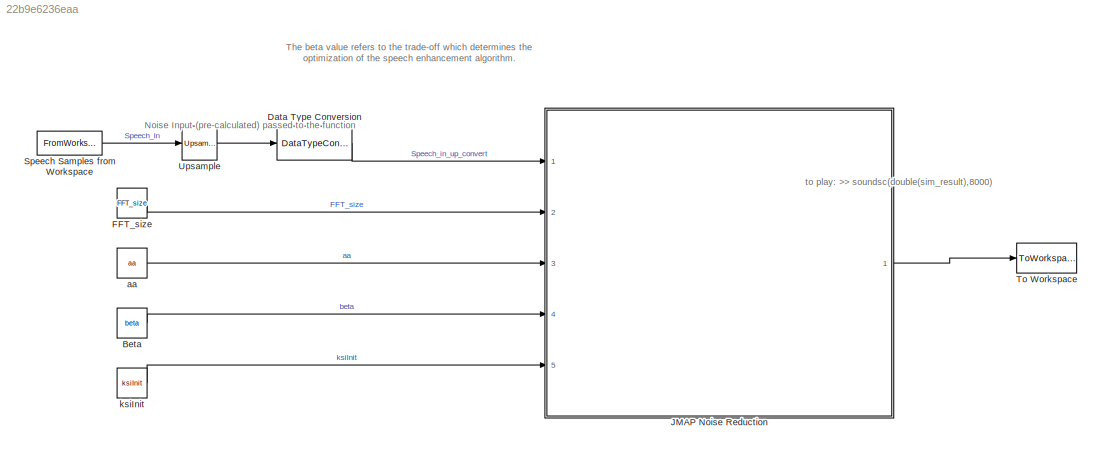
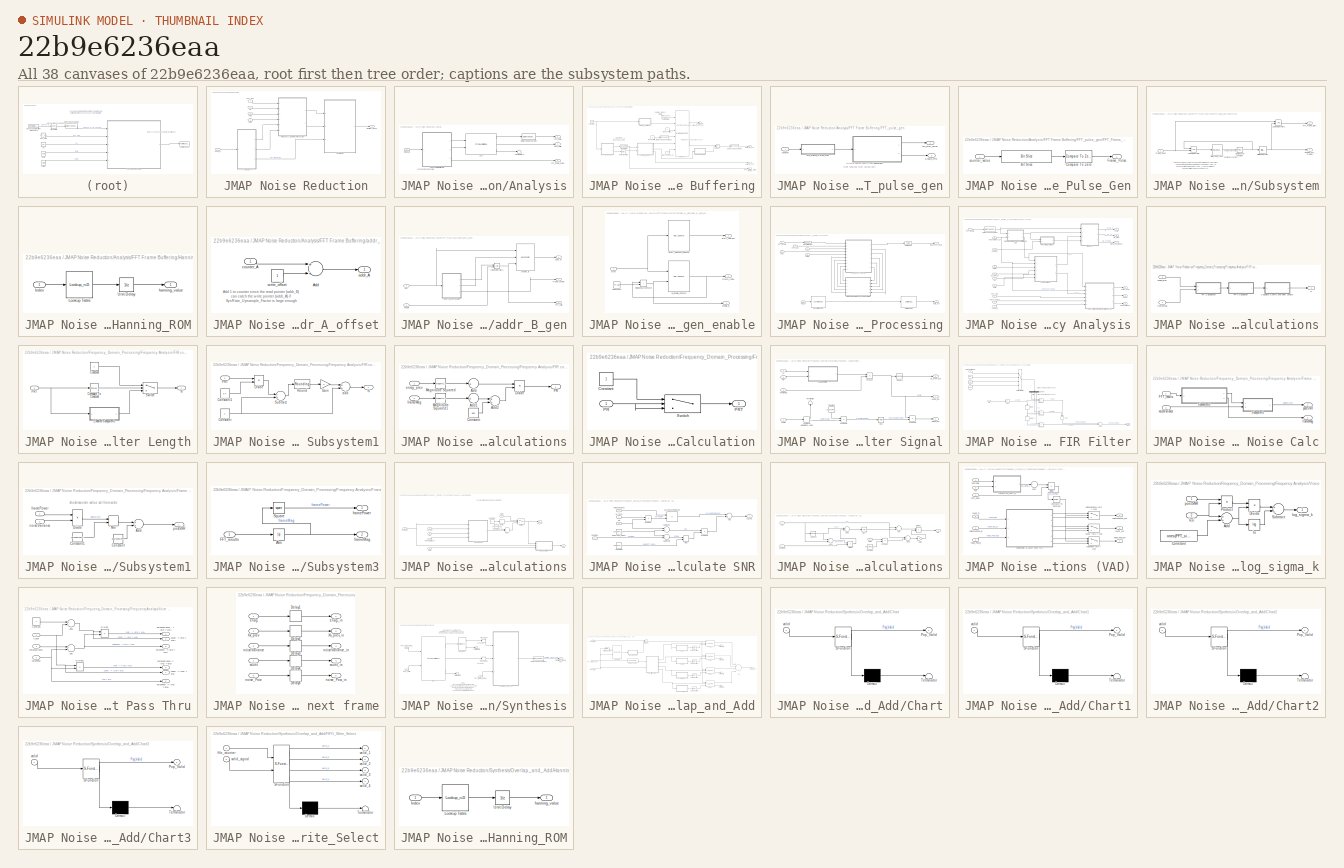
[diagram: thumbnail index - all 38 canvases of the model, root first then tree order]
MODEL slx_22b9e6236eaa
KIND model
CONFIG AbsTol = auto
CONFIG EnableMultiTasking = off
CONFIG FixedStep = auto
CONFIG InitFcn = JMAP_INIT\n
CONFIG MaxStep = auto
CONFIG MinStep = auto
CONFIG RelTol = 1e-3
CONFIG SampleTimeConstraint = Unconstrained
CONFIG Solver = FixedStepDiscrete
CONFIG SolverName = FixedStepDiscrete
CONFIG StartTime = 0.0
CONFIG StopFcn = % Calls predefined matlab function for data analysis\nJMAP_STOP
CONFIG StopTime = stopTime
BLOCK [Constant] Beta
  SampleTime = Ts*2
  Value = beta
BLOCK [DataTypeConversion] Data Type Conversion
  OutDataTypeStr = double
  RndMeth = Floor
  SaturateOnIntegerOverflow = off
BLOCK [Constant] FFT_size
  SampleTime = Ts*2
  Value = FFT_size
BLOCK [SubSystem] JMAP Noise Reduction
  Ports = [5, 1]
  RequestExecContextInheritance = off
  TreatAsAtomicUnit = on
BLOCK [SubSystem] JMAP Noise Reduction/Analysis
  Ports = [1, 3]
  RequestExecContextInheritance = off
BLOCK [DataTypeConversion] JMAP Noise Reduction/Analysis/Data Type Conversion
  OutDataTypeStr = double
  RndMeth = Floor
  SaturateOnIntegerOverflow = off
BLOCK [Reference] JMAP Noise Reduction/Analysis/FFT  REF=dspxfrm3/FFT
HDL Optimized
  Ports = [2, 3]
  SourceBlock = dspxfrm3/FFT\nHDL Optimized
  SourceProductBaseCode = DS
  SourceProductName = DSP System Toolbox
  SourceType = FFT HDL Optimized
BLOCK [SubSystem] JMAP Noise Reduction/Analysis/FFT Frame Buffering
  Ports = [1, 3]
  RequestExecContextInheritance = off
BLOCK [Constant] JMAP Noise Reduction/Analysis/FFT Frame Buffering/Always_Read_B
  OutDataTypeStr = boolean
  SampleTime = Ts/SysRate_Upsample_Factor
  Value = 0
BLOCK [Constant] JMAP Noise Reduction/Analysis/FFT Frame Buffering/Always_Write_A
  OutDataTypeStr = boolean
  SampleTime = Ts
BLOCK [Reference] JMAP Noise Reduction/Analysis/FFT Frame Buffering/DPRAM  REF=hdlsllib/HDL RAMs/Dual Rate Dual Port RAM
  Ports = [6, 2]
  SourceBlock = hdlsllib/HDL RAMs/Dual Rate Dual Port RAM
  SourceProductBaseCode = HD
  SourceProductName = HDL Coder
  SourceType = Dual-rate dual-port RAM
BLOCK [DataTypeConversion] JMAP Noise Reduction/Analysis/FFT Frame Buffering/Data Type Conversion
  OutDataTypeStr = fixdt(1,Wbits,Fbits)
  RndMeth = Floor
  SaturateOnIntegerOverflow = off
BLOCK [DataTypeConversion] JMAP Noise Reduction/Analysis/FFT Frame Buffering/Data Type Conversion1
  OutDataTypeStr = double
  RndMeth = Floor
  SaturateOnIntegerOverflow = off
BLOCK [Outport] JMAP Noise Reduction/Analysis/FFT Frame Buffering/Data_to_FFT
  IconDisplay = Port number
BLOCK [Outport] JMAP Noise Reduction/Analysis/FFT Frame Buffering/FFT_Frame_Start_Pulse
  IconDisplay = Port number
  Port = 3
BLOCK [SubSystem] JMAP Noise Reduction/Analysis/FFT Frame Buffering/FFT_pulse_gen
  Ports = [1, 2]
  RequestExecContextInheritance = off
BLOCK [Outport] JMAP Noise Reduction/Analysis/FFT Frame Buffering/FFT_pulse_gen/Enable_FFTs
  IconDisplay = Port number
  Port = 2
BLOCK [SubSystem] JMAP Noise Reduction/Analysis/FFT Frame Buffering/FFT_pulse_gen/FFT_Frame_Pulse_Gen
  Ports = [1, 1]
  RequestExecContextInheritance = off
BLOCK [Reference] JMAP Noise Reduction/Analysis/FFT Frame Buffering/FFT_pulse_gen/FFT_Frame_Pulse_Gen/Bit Slice  REF=hdlsllib/Logic and Bit
Operations/Bit Slice
  Ports = [1, 1]
  SourceBlock = hdlsllib/Logic and Bit\nOperations/Bit Slice
  SourceProductBaseCode = HD
  SourceProductName = HDL Coder
  SourceType = Bit Slice
BLOCK [Reference] JMAP Noise Reduction/Analysis/FFT Frame Buffering/FFT_pulse_gen/FFT_Frame_Pulse_Gen/Compare To Zero  REF=simulink/Logic and Bit
Operations/Compare
To Zero
  Ports = [1, 1]
  SourceBlock = simulink/Logic and Bit\nOperations/Compare\nTo Zero
  SourceProductBaseCode = SL
  SourceProductName = Simulink
  SourceType = Compare To Zero
BLOCK [Outport] JMAP Noise Reduction/Analysis/FFT Frame Buffering/FFT_pulse_gen/FFT_Frame_Pulse_Gen/Frame_Pulse
  IconDisplay = Port number
BLOCK [Inport] JMAP Noise Reduction/Analysis/FFT Frame Buffering/FFT_pulse_gen/FFT_Frame_Pulse_Gen/counter_value 
  IconDisplay = Port number
BLOCK [Outport] JMAP Noise Reduction/Analysis/FFT Frame Buffering/FFT_pulse_gen/FFT_start_pulse
  IconDisplay = Port number
BLOCK [SubSystem] JMAP Noise Reduction/Analysis/FFT Frame Buffering/FFT_pulse_gen/Subsystem
  Ports = [1, 2]
  RequestExecContextInheritance = off
BLOCK [Reference] JMAP Noise Reduction/Analysis/FFT Frame Buffering/FFT_pulse_gen/Subsystem/Bitwise Operator  REF=simulink/Logic and Bit
Operations/Bitwise
Operator
  Ports = [1, 1]
  SourceBlock = simulink/Logic and Bit\nOperations/Bitwise\nOperator
  SourceProductBaseCode = SL
  SourceProductName = Simulink
  SourceType = Bitwise Operator
BLOCK [Reference] JMAP Noise Reduction/Analysis/FFT Frame Buffering/FFT_pulse_gen/Subsystem/Compare To Constant  REF=simulink/Logic and Bit
Operations/Compare
To Constant
  Ports = [1, 1]
  SourceBlock = simulink/Logic and Bit\nOperations/Compare\nTo Constant
  SourceProductBaseCode = SL
  SourceProductName = Simulink
  SourceType = Compare To Constant
BLOCK [Outport] JMAP Noise Reduction/Analysis/FFT Frame Buffering/FFT_pulse_gen/Subsystem/Enable_FFT_Frames
  IconDisplay = Port number
  Port = 2
BLOCK [Outport] JMAP Noise Reduction/Analysis/FFT Frame Buffering/FFT_pulse_gen/Subsystem/FFT_Frame_Start
  IconDisplay = Port number
BLOCK [Inport] JMAP Noise Reduction/Analysis/FFT Frame Buffering/FFT_pulse_gen/Subsystem/Frame_Pulse
  IconDisplay = Port number
BLOCK [Reference] JMAP Noise Reduction/Analysis/FFT Frame Buffering/FFT_pulse_gen/Subsystem/Initial_frame_count  REF=hdlsllib/Sources/HDL Counter
  Ports = [1, 1]
  SourceBlock = hdlsllib/Sources/HDL Counter
  SourceProductBaseCode = HD
  SourceProductName = HDL Coder
  SourceType = HDL Counter
BLOCK [Logic] JMAP Noise Reduction/Analysis/FFT Frame Buffering/FFT_pulse_gen/Subsystem/Logical Operator
  AllPortsSameDT = off
  OutDataTypeStr = boolean
  Ports = [2, 1]
BLOCK [Logic] JMAP Noise Reduction/Analysis/FFT Frame Buffering/FFT_pulse_gen/Subsystem/Logical Operator1
  AllPortsSameDT = off
  OutDataTypeStr = boolean
  Ports = [2, 1]
BLOCK [Inport] JMAP Noise Reduction/Analysis/FFT Frame Buffering/FFT_pulse_gen/counter
  IconDisplay = Port number
BLOCK [SubSystem] JMAP Noise Reduction/Analysis/FFT Frame Buffering/Hanning_ROM
  Ports = [1, 1]
  RequestExecContextInheritance = off
BLOCK [Inport] JMAP Noise Reduction/Analysis/FFT Frame Buffering/Hanning_ROM/Index
  IconDisplay = Port number
BLOCK [Lookup_n-D] JMAP Noise Reduction/Analysis/FFT Frame Buffering/Hanning_ROM/Lookup Table
  BreakpointsForDimension1 = [0:FFT_size]
  DiagnosticForOutOfRangeInput = Error
  ExtrapMethod = Clip
  IndexSearchMethod = Evenly spaced points
  InterpMethod = Flat
  NumberOfTableDimensions = 1
  OutDataTypeStr = double
  Ports = [1, 1]
  RndMeth = Simplest
  Table = hanning(FFT_size+1)
  UseLastTableValue = on
BLOCK [UnitDelay] JMAP Noise Reduction/Analysis/FFT Frame Buffering/Hanning_ROM/Unit Delay
  HasFrameUpgradeWarning = on
  SampleTime = -1
BLOCK [Outport] JMAP Noise Reduction/Analysis/FFT Frame Buffering/Hanning_ROM/hanning_value
  IconDisplay = Port number
BLOCK [Constant] JMAP Noise Reduction/Analysis/FFT Frame Buffering/Never_Write_B
  OutDataTypeStr = fixdt(1,Wbits,Fbits)
  SampleTime = Ts/SysRate_Upsample_Factor
  Value = 0
BLOCK [Product] JMAP Noise Reduction/Analysis/FFT Frame Buffering/Product
  InputSameDT = off
  OutDataTypeStr = Inherit: Inherit via internal rule
  Ports = [2, 1]
  RndMeth = Floor
  SaturateOnIntegerOverflow = off
BLOCK [RateTransition] JMAP Noise Reduction/Analysis/FFT Frame Buffering/Rate Transition
  OutPortSampleTimeMultiple = 1/SysRate_Upsample_Factor
  OutPortSampleTimeOpt = Multiple of input port sample time
BLOCK [Inport] JMAP Noise Reduction/Analysis/FFT Frame Buffering/Sample_Data_in
  IconDisplay = Port number
BLOCK [Terminator] JMAP Noise Reduction/Analysis/FFT Frame Buffering/Terminator7
BLOCK [Reference] JMAP Noise Reduction/Analysis/FFT Frame Buffering/Upsample  REF=dspsigops/Upsample
  Ports = [1, 1]
  SourceBlock = dspsigops/Upsample
  SourceProductBaseCode = DS
  SourceProductName = DSP System Toolbox
  SourceType = Upsample
  UserDataPersistent = on
BLOCK [Outport] JMAP Noise Reduction/Analysis/FFT Frame Buffering/Valid_to_FFT
  IconDisplay = Port number
  Port = 2
BLOCK [SubSystem] JMAP Noise Reduction/Analysis/FFT Frame Buffering/addr_A_offset
  Ports = [1, 1]
  RequestExecContextInheritance = off
BLOCK [Sum] JMAP Noise Reduction/Analysis/FFT Frame Buffering/addr_A_offset/Add
  InputSameDT = off
  OutDataTypeStr = fixdt(0,DPRAM1_address_size,0)
  Ports = [2, 1]
  SaturateOnIntegerOverflow = off
BLOCK [Outport] JMAP Noise Reduction/Analysis/FFT Frame Buffering/addr_A_offset/addr_A
  IconDisplay = Port number
BLOCK [Inport] JMAP Noise Reduction/Analysis/FFT Frame Buffering/addr_A_offset/counter_A
  IconDisplay = Port number
BLOCK [Constant] JMAP Noise Reduction/Analysis/FFT Frame Buffering/addr_A_offset/write_offset
  OutDataTypeStr = fixdt(0,DPRAM1_address_size,0)
  SampleTime = Ts
BLOCK [SubSystem] JMAP Noise Reduction/Analysis/FFT Frame Buffering/addr_B_gen
  Ports = [2, 3]
  RequestExecContextInheritance = off
BLOCK [Outport] JMAP Noise Reduction/Analysis/FFT Frame Buffering/addr_B_gen/FFT_Valid
  IconDisplay = Port number
  Port = 3
BLOCK [Outport] JMAP Noise Reduction/Analysis/FFT Frame Buffering/addr_B_gen/Frame_counter
  IconDisplay = Port number
  Port = 2
BLOCK [Logic] JMAP Noise Reduction/Analysis/FFT Frame Buffering/addr_B_gen/Logical Operator1
  AllPortsSameDT = off
  OutDataTypeStr = boolean
  Ports = [2, 1]
BLOCK [Outport] JMAP Noise Reduction/Analysis/FFT Frame Buffering/addr_B_gen/addr_B
  IconDisplay = Port number
BLOCK [SubSystem] JMAP Noise Reduction/Analysis/FFT Frame Buffering/addr_B_gen/addr_B_gen_enable
  Ports = [1, 3]
  RequestExecContextInheritance = off
BLOCK [Reference] JMAP Noise Reduction/Analysis/FFT Frame Buffering/addr_B_gen/addr_B_gen_enable/B_Enable_Counter  REF=hdlsllib/Sources/HDL Counter
  Ports = [2, 1]
  SourceBlock = hdlsllib/Sources/HDL Counter
  SourceProductBaseCode = HD
  SourceProductName = HDL Coder
  SourceType = HDL Counter
BLOCK [Constant] JMAP Noise Reduction/Analysis/FFT Frame Buffering/addr_B_gen/addr_B_gen_enable/Constant5
  OutDataTypeStr = fixdt(0,11,0)
  SampleTime = Ts/SysRate_Upsample_Factor
  Value = FFT_size
BLOCK [Outport] JMAP Noise Reduction/Analysis/FFT Frame Buffering/addr_B_gen/addr_B_gen_enable/Frame_Index
  IconDisplay = Port number
  Port = 3
BLOCK [RelationalOperator] JMAP Noise Reduction/Analysis/FFT Frame Buffering/addr_B_gen/addr_B_gen_enable/Relational Operator
  InputSameDT = off
  Operator = <
  OutDataTypeStr = boolean
  Ports = [2, 1]
  ZeroCross = off
BLOCK [Outport] JMAP Noise Reduction/Analysis/FFT Frame Buffering/addr_B_gen/addr_B_gen_enable/Start_Address
  IconDisplay = Port number
  Port = 2
BLOCK [Reference] JMAP Noise Reduction/Analysis/FFT Frame Buffering/addr_B_gen/addr_B_gen_enable/Start_Address_Counter  REF=hdlsllib/Sources/HDL Counter
  Ports = [1, 1]
  SourceBlock = hdlsllib/Sources/HDL Counter
  SourceProductBaseCode = HD
  SourceProductName = HDL Coder
  SourceType = HDL Counter
BLOCK [Outport] JMAP Noise Reduction/Analysis/FFT Frame Buffering/addr_B_gen/addr_B_gen_enable/enable_B
  IconDisplay = Port number
BLOCK [Inport] JMAP Noise Reduction/Analysis/FFT Frame Buffering/addr_B_gen/addr_B_gen_enable/start
  IconDisplay = Port number
BLOCK [Reference] JMAP Noise Reduction/Analysis/FFT Frame Buffering/addr_B_gen/counter_B  REF=hdlsllib/Sources/HDL Counter
  Ports = [3, 1]
  SourceBlock = hdlsllib/Sources/HDL Counter
  SourceProductBaseCode = HD
  SourceProductName = HDL Coder
  SourceType = HDL Counter
BLOCK [Inport] JMAP Noise Reduction/Analysis/FFT Frame Buffering/addr_B_gen/enable
  IconDisplay = Port number
  Port = 2
BLOCK [Inport] JMAP Noise Reduction/Analysis/FFT Frame Buffering/addr_B_gen/start
  IconDisplay = Port number
BLOCK [Reference] JMAP Noise Reduction/Analysis/FFT Frame Buffering/counter_A  REF=simulink/Sources/Counter
Free-Running
  Ports = [0, 1]
  SourceBlock = simulink/Sources/Counter\nFree-Running
  SourceProductBaseCode = SL
  SourceProductName = Simulink
  SourceType = Counter Free-Running
BLOCK [Outport] JMAP Noise Reduction/Analysis/FFT_data
  IconDisplay = Port number
BLOCK [Outport] JMAP Noise Reduction/Analysis/FFT_frame_pulse
  IconDisplay = Port number
  Port = 3
BLOCK [Outport] JMAP Noise Reduction/Analysis/FFT_valid
  IconDisplay = Port number
  Port = 2
BLOCK [Inport] JMAP Noise Reduction/Analysis/Signal_in
  IconDisplay = Port number
BLOCK [Terminator] JMAP Noise Reduction/Analysis/Terminator6
BLOCK [Inport] JMAP Noise Reduction/FFT_size
  IconDisplay = Port number
  Port = 2
BLOCK [SubSystem] JMAP Noise Reduction/Frequency_Domain_Processing
  Ports = [6, 2]
  RequestExecContextInheritance = off
BLOCK [Reference] JMAP Noise Reduction/Frequency_Domain_Processing/Deserializer1D  REF=hdlsllib/HDL Operations/Deserializer1D
  Ports = [1, 1]
  SourceBlock = hdlsllib/HDL Operations/Deserializer1D
  SourceProductBaseCode = HD
  SourceProductName = HDL Coder
  SourceType = Deserializer1D
BLOCK [Reference] JMAP Noise Reduction/Frequency_Domain_Processing/Deserializer1D1  REF=hdlsllib/HDL Operations/Deserializer1D
  Ports = [1, 1]
  SourceBlock = hdlsllib/HDL Operations/Deserializer1D
  SourceProductBaseCode = HD
  SourceProductName = HDL Coder
  SourceType = Deserializer1D
BLOCK [Inport] JMAP Noise Reduction/Frequency_Domain_Processing/FFT_results
  IconDisplay = Port number
  Port = 5
BLOCK [Inport] JMAP Noise Reduction/Frequency_Domain_Processing/FFT_size
  IconDisplay = Port number
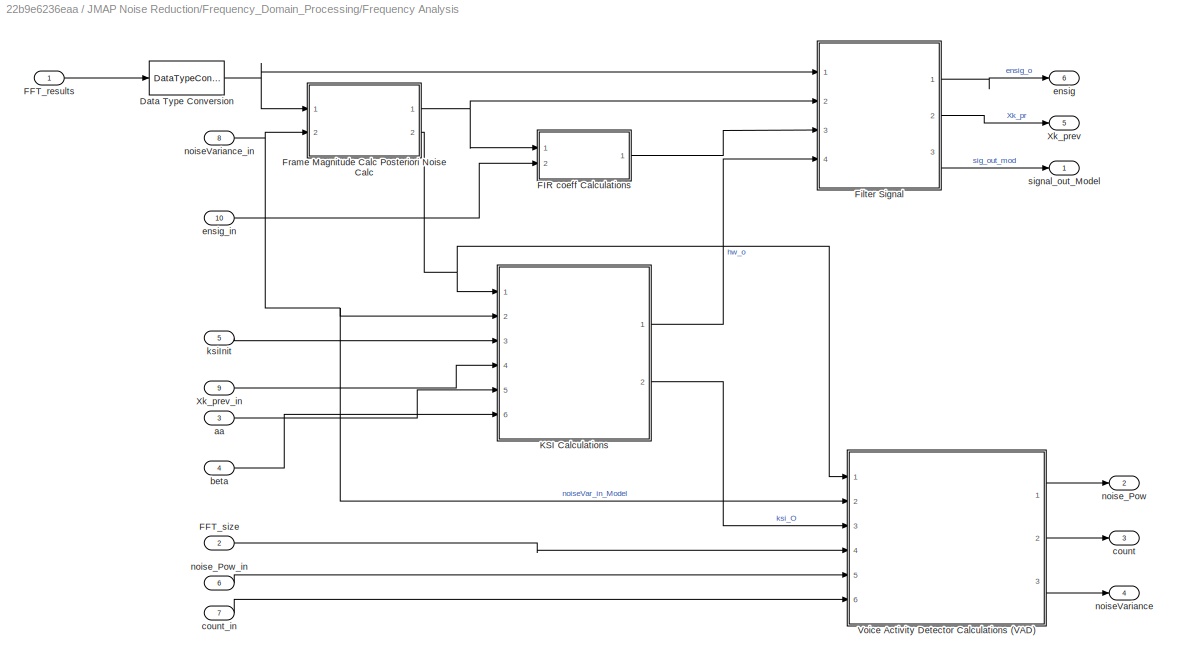
BLOCK [SubSystem] JMAP Noise Reduction/Frequency_Domain_Processing/Frequency Analysis
  Ports = [10, 6]
  RequestExecContextInheritance = off
  TreatAsAtomicUnit = on
BLOCK [DataTypeConversion] JMAP Noise Reduction/Frequency_Domain_Processing/Frequency Analysis/Data Type Conversion
  OutDataTypeStr = double
  RndMeth = Floor
  SaturateOnIntegerOverflow = off
BLOCK [Inport] JMAP Noise Reduction/Frequency_Domain_Processing/Frequency Analysis/FFT_results
  IconDisplay = Port number
BLOCK [Inport] JMAP Noise Reduction/Frequency_Domain_Processing/Frequency Analysis/FFT_size
  IconDisplay = Port number
  Port = 2
BLOCK [SubSystem] JMAP Noise Reduction/Frequency_Domain_Processing/Frequency Analysis/FIR coeff Calculations
  Ports = [2, 1]
  RequestExecContextInheritance = off
BLOCK [SubSystem] JMAP Noise Reduction/Frequency_Domain_Processing/Frequency Analysis/FIR coeff Calculations/Calculate Coeffs and Filter Length
  Ports = [1, 1]
  RequestExecContextInheritance = off
BLOCK [Reference] JMAP Noise Reduction/Frequency_Domain_Processing/Frequency Analysis/FIR coeff Calculations/Calculate Coeffs and Filter Length/Compare To Constant  REF=simulink/Logic and Bit
Operations/Compare
To Constant
  Ports = [1, 1]
  SourceBlock = simulink/Logic and Bit\nOperations/Compare\nTo Constant
  SourceProductBaseCode = SL
  SourceProductName = Simulink
  SourceType = Compare To Constant
BLOCK [Constant] JMAP Noise Reduction/Frequency_Domain_Processing/Frequency Analysis/FIR coeff Calculations/Calculate Coeffs and Filter Length/Constant
  SampleTime = -1
BLOCK [SubSystem] JMAP Noise Reduction/Frequency_Domain_Processing/Frequency Analysis/FIR coeff Calculations/Calculate Coeffs and Filter Length/Enabled Subsystem1
  Ports = [1, 1]
  RequestExecContextInheritance = off
  TreatAsAtomicUnit = on
BLOCK [Constant] JMAP Noise Reduction/Frequency_Domain_Processing/Frequency Analysis/FIR coeff Calculations/Calculate Coeffs and Filter Length/Enabled Subsystem1/Constant
  SampleTime = -1
BLOCK [Constant] JMAP Noise Reduction/Frequency_Domain_Processing/Frequency Analysis/FIR coeff Calculations/Calculate Coeffs and Filter Length/Enabled Subsystem1/Constant1
  SampleTime = -1
  Value = 0.4
BLOCK [Product] JMAP Noise Reduction/Frequency_Domain_Processing/Frequency Analysis/FIR coeff Calculations/Calculate Coeffs and Filter Length/Enabled Subsystem1/Divide
  InputSameDT = off
  Inputs = */
  OutDataTypeStr = Inherit: Inherit via internal rule
  Ports = [2, 1]
BLOCK [Gain] JMAP Noise Reduction/Frequency_Domain_Processing/Frequency Analysis/FIR coeff Calculations/Calculate Coeffs and Filter Length/Enabled Subsystem1/Gain
  Gain = 2
  OutDataTypeStr = Inherit: Inherit via internal rule
  ParamDataTypeStr = Inherit: Inherit via internal rule
  SaturateOnIntegerOverflow = off
BLOCK [Outport] JMAP Noise Reduction/Frequency_Domain_Processing/Frequency Analysis/FIR coeff Calculations/Calculate Coeffs and Filter Length/Enabled Subsystem1/N
  IconDisplay = Port number
  InitialOutput = 0
BLOCK [Inport] JMAP Noise Reduction/Frequency_Domain_Processing/Frequency Analysis/FIR coeff Calculations/Calculate Coeffs and Filter Length/Enabled Subsystem1/PRT
  IconDisplay = Port number
BLOCK [Rounding] JMAP Noise Reduction/Frequency_Domain_Processing/Frequency Analysis/FIR coeff Calculations/Calculate Coeffs and Filter Length/Enabled Subsystem1/Round
  Operator = round
BLOCK [Sum] JMAP Noise Reduction/Frequency_Domain_Processing/Frequency Analysis/FIR coeff Calculations/Calculate Coeffs and Filter Length/Enabled Subsystem1/Subtract
  InputSameDT = off
  Inputs = -+
  OutDataTypeStr = Inherit: Inherit via internal rule
  Ports = [2, 1]
  SaturateOnIntegerOverflow = off
BLOCK [Sum] JMAP Noise Reduction/Frequency_Domain_Processing/Frequency Analysis/FIR coeff Calculations/Calculate Coeffs and Filter Length/Enabled Subsystem1/add
  InputSameDT = off
  OutDataTypeStr = Inherit: Inherit via internal rule
  Ports = [2, 1]
  SaturateOnIntegerOverflow = off
BLOCK [Outport] JMAP Noise Reduction/Frequency_Domain_Processing/Frequency Analysis/FIR coeff Calculations/Calculate Coeffs and Filter Length/N
  IconDisplay = Port number
BLOCK [Inport] JMAP Noise Reduction/Frequency_Domain_Processing/Frequency Analysis/FIR coeff Calculations/Calculate Coeffs and Filter Length/PRT
  IconDisplay = Port number
BLOCK [Switch] JMAP Noise Reduction/Frequency_Domain_Processing/Frequency Analysis/FIR coeff Calculations/Calculate Coeffs and Filter Length/Switch
  Criteria = u2 > Threshold
  InputSameDT = off
  SaturateOnIntegerOverflow = off
BLOCK [Outport] JMAP Noise Reduction/Frequency_Domain_Processing/Frequency Analysis/FIR coeff Calculations/N
  IconDisplay = Port number
BLOCK [SubSystem] JMAP Noise Reduction/Frequency_Domain_Processing/Frequency Analysis/FIR coeff Calculations/PR Calculations
  Ports = [2, 1]
  RequestExecContextInheritance = off
BLOCK [Sum] JMAP Noise Reduction/Frequency_Domain_Processing/Frequency Analysis/FIR coeff Calculations/PR Calculations/Add
  InputSameDT = off
  Inputs = +
  OutDataTypeStr = Inherit: Inherit via internal rule
  Ports = [1, 1]
  SaturateOnIntegerOverflow = off
BLOCK [Sum] JMAP Noise Reduction/Frequency_Domain_Processing/Frequency Analysis/FIR coeff Calculations/PR Calculations/Add1
  InputSameDT = off
  Inputs = +
  OutDataTypeStr = Inherit: Inherit via internal rule
  Ports = [1, 1]
  SaturateOnIntegerOverflow = off
BLOCK [Sum] JMAP Noise Reduction/Frequency_Domain_Processing/Frequency Analysis/FIR coeff Calculations/PR Calculations/Add2
  InputSameDT = off
  OutDataTypeStr = Inherit: Inherit via internal rule
  Ports = [2, 1]
  SaturateOnIntegerOverflow = off
BLOCK [Constant] JMAP Noise Reduction/Frequency_Domain_Processing/Frequency Analysis/FIR coeff Calculations/PR Calculations/Constant
  SampleTime = -1
  Value = eps
BLOCK [Product] JMAP Noise Reduction/Frequency_Domain_Processing/Frequency Analysis/FIR coeff Calculations/PR Calculations/Divide
  InputSameDT = off
  Inputs = */
  OutDataTypeStr = Inherit: Inherit via internal rule
  Ports = [2, 1]
BLOCK [Math] JMAP Noise Reduction/Frequency_Domain_Processing/Frequency Analysis/FIR coeff Calculations/PR Calculations/Magnitude Squared
  Operator = magnitude^2
  Ports = [1, 1]
BLOCK [Math] JMAP Noise Reduction/Frequency_Domain_Processing/Frequency Analysis/FIR coeff Calculations/PR Calculations/Magnitude Squared1
  Operator = magnitude^2
  Ports = [1, 1]
BLOCK [Outport] JMAP Noise Reduction/Frequency_Domain_Processing/Frequency Analysis/FIR coeff Calculations/PR Calculations/PR
  IconDisplay = Port number
BLOCK [Inport] JMAP Noise Reduction/Frequency_Domain_Processing/Frequency Analysis/FIR coeff Calculations/PR Calculations/ensig_prev
  IconDisplay = Port number
BLOCK [Inport] JMAP Noise Reduction/Frequency_Domain_Processing/Frequency Analysis/FIR coeff Calculations/PR Calculations/frameMag
  IconDisplay = Port number
  Port = 2
BLOCK [SubSystem] JMAP Noise Reduction/Frequency_Domain_Processing/Frequency Analysis/FIR coeff Calculations/PRT Calculation
  Ports = [1, 1]
  RequestExecContextInheritance = off
BLOCK [Constant] JMAP Noise Reduction/Frequency_Domain_Processing/Frequency Analysis/FIR coeff Calculations/PRT Calculation/Constant
  SampleTime = -1
BLOCK [Inport] JMAP Noise Reduction/Frequency_Domain_Processing/Frequency Analysis/FIR coeff Calculations/PRT Calculation/PR
  IconDisplay = Port number
BLOCK [Outport] JMAP Noise Reduction/Frequency_Domain_Processing/Frequency Analysis/FIR coeff Calculations/PRT Calculation/PRT
  IconDisplay = Port number
BLOCK [Switch] JMAP Noise Reduction/Frequency_Domain_Processing/Frequency Analysis/FIR coeff Calculations/PRT Calculation/Switch
  InputSameDT = off
  SaturateOnIntegerOverflow = off
  Threshold = 0.4
BLOCK [Inport] JMAP Noise Reduction/Frequency_Domain_Processing/Frequency Analysis/FIR coeff Calculations/ensig_prev
  IconDisplay = Port number
  Port = 2
BLOCK [Inport] JMAP Noise Reduction/Frequency_Domain_Processing/Frequency Analysis/FIR coeff Calculations/frameMag
  IconDisplay = Port number
BLOCK [SubSystem] JMAP Noise Reduction/Frequency_Domain_Processing/Frequency Analysis/Filter Signal
  Ports = [4, 3]
  RequestExecContextInheritance = off
BLOCK [ComplexToMagnitudeAngle] JMAP Noise Reduction/Frequency_Domain_Processing/Frequency Analysis/Filter Signal/Complex to Magnitude-Angle
  Ports = [1, 2]
BLOCK [Constant] JMAP Noise Reduction/Frequency_Domain_Processing/Frequency Analysis/Filter Signal/Constant
  SampleTime = -1
  Value = 1i*ones(FFT_size, 1)
BLOCK [SubSystem] JMAP Noise Reduction/Frequency_Domain_Processing/Frequency Analysis/Filter Signal/Custom FIR Filter
  Ports = [2, 1]
  RequestExecContextInheritance = off
BLOCK [Abs] JMAP Noise Reduction/Frequency_Domain_Processing/Frequency Analysis/Filter Signal/Custom FIR Filter/Abs
  SaturateOnIntegerOverflow = off
BLOCK [Sum] JMAP Noise Reduction/Frequency_Domain_Processing/Frequency Analysis/Filter Signal/Custom FIR Filter/Add
  InputSameDT = off
  OutDataTypeStr = Inherit: Inherit via internal rule
  Ports = [2, 1]
  SaturateOnIntegerOverflow = off
BLOCK [Sum] JMAP Noise Reduction/Frequency_Domain_Processing/Frequency Analysis/Filter Signal/Custom FIR Filter/Add2
  InputSameDT = off
  OutDataTypeStr = Inherit: Inherit via internal rule
  Ports = [2, 1]
  SaturateOnIntegerOverflow = off
BLOCK [Delay] JMAP Noise Reduction/Frequency_Domain_Processing/Frequency Analysis/Filter Signal/Custom FIR Filter/Delay
  DelayLength = 1
  InputPortMap = u0
  Ports = [1, 1]
BLOCK [Delay] JMAP Noise Reduction/Frequency_Domain_Processing/Frequency Analysis/Filter Signal/Custom FIR Filter/Delay1
  DelayLength = 1
  InputPortMap = u0
  Ports = [1, 1]
BLOCK [Demux] JMAP Noise Reduction/Frequency_Domain_Processing/Frequency Analysis/Filter Signal/Custom FIR Filter/Demux
  DisplayOption = bar
  Outputs = 3
  Ports = [1, 3]
BLOCK [Outport] JMAP Noise Reduction/Frequency_Domain_Processing/Frequency Analysis/Filter Signal/Custom FIR Filter/HPF
  IconDisplay = Port number
BLOCK [MultiPortSwitch] JMAP Noise Reduction/Frequency_Domain_Processing/Frequency Analysis/Filter Signal/Custom FIR Filter/Multiport Switch
  DiagnosticForDefault = Warning
  InputSameDT = off
  Ports = [4, 1]
  SaturateOnIntegerOverflow = off
BLOCK [Inport] JMAP Noise Reduction/Frequency_Domain_Processing/Frequency Analysis/Filter Signal/Custom FIR Filter/N FIR Coefficients
  IconDisplay = Port number
BLOCK [Product] JMAP Noise Reduction/Frequency_Domain_Processing/Frequency Analysis/Filter Signal/Custom FIR Filter/Product
  InputSameDT = off
  OutDataTypeStr = Inherit: Inherit via internal rule
  Ports = [2, 1]
  RndMeth = Floor
  SaturateOnIntegerOverflow = off
BLOCK [Product] JMAP Noise Reduction/Frequency_Domain_Processing/Frequency Analysis/Filter Signal/Custom FIR Filter/Product3
  InputSameDT = off
  OutDataTypeStr = Inherit: Inherit via internal rule
  Ports = [2, 1]
  RndMeth = Floor
  SaturateOnIntegerOverflow = off
BLOCK [Product] JMAP Noise Reduction/Frequency_Domain_Processing/Frequency Analysis/Filter Signal/Custom FIR Filter/Product4
  InputSameDT = off
  OutDataTypeStr = Inherit: Inherit via internal rule
  Ports = [2, 1]
  RndMeth = Floor
  SaturateOnIntegerOverflow = off
BLOCK [Constant] JMAP Noise Reduction/Frequency_Domain_Processing/Frequency Analysis/Filter Signal/Custom FIR Filter/b1
  SampleTime = -1
  Value = [1, 0, 0]
BLOCK [Constant] JMAP Noise Reduction/Frequency_Domain_Processing/Frequency Analysis/Filter Signal/Custom FIR Filter/b2
  SampleTime = -1
  Value = [0.5, 0.5, 0]
BLOCK [Constant] JMAP Noise Reduction/Frequency_Domain_Processing/Frequency Analysis/Filter Signal/Custom FIR Filter/b3
  SampleTime = -1
  Value = [1/3, 1/3, 1/3]
BLOCK [Inport] JMAP Noise Reduction/Frequency_Domain_Processing/Frequency Analysis/Filter Signal/Custom FIR Filter/hw
  IconDisplay = Port number
  Port = 2
BLOCK [Math] JMAP Noise Reduction/Frequency_Domain_Processing/Frequency Analysis/Filter Signal/Exp
  Ports = [1, 1]
BLOCK [Inport] JMAP Noise Reduction/Frequency_Domain_Processing/Frequency Analysis/Filter Signal/N
  IconDisplay = Port number
  Port = 3
BLOCK [Product] JMAP Noise Reduction/Frequency_Domain_Processing/Frequency Analysis/Filter Signal/Product
  InputSameDT = off
  OutDataTypeStr = Inherit: Inherit via internal rule
  Ports = [2, 1]
  RndMeth = Floor
  SaturateOnIntegerOverflow = off
BLOCK [Product] JMAP Noise Reduction/Frequency_Domain_Processing/Frequency Analysis/Filter Signal/Product1
  InputSameDT = off
  OutDataTypeStr = Inherit: Inherit via internal rule
  Ports = [2, 1]
  RndMeth = Floor
  SaturateOnIntegerOverflow = off
BLOCK [Product] JMAP Noise Reduction/Frequency_Domain_Processing/Frequency Analysis/Filter Signal/Product2
  InputSameDT = off
  OutDataTypeStr = Inherit: Inherit via internal rule
  Ports = [2, 1]
  RndMeth = Floor
  SaturateOnIntegerOverflow = off
BLOCK [Math] JMAP Noise Reduction/Frequency_Domain_Processing/Frequency Analysis/Filter Signal/Square
  Operator = square
  Ports = [1, 1]
  RndMeth = Zero
BLOCK [Terminator] JMAP Noise Reduction/Frequency_Domain_Processing/Frequency Analysis/Filter Signal/Terminator
BLOCK [Outport] JMAP Noise Reduction/Frequency_Domain_Processing/Frequency Analysis/Filter Signal/Xk_prev_out
  IconDisplay = Port number
  Port = 2
BLOCK [Outport] JMAP Noise Reduction/Frequency_Domain_Processing/Frequency Analysis/Filter Signal/ensig_out
  IconDisplay = Port number
BLOCK [Inport] JMAP Noise Reduction/Frequency_Domain_Processing/Frequency Analysis/Filter Signal/frame
  IconDisplay = Port number
BLOCK [Inport] JMAP Noise Reduction/Frequency_Domain_Processing/Frequency Analysis/Filter Signal/frameMag
  IconDisplay = Port number
  Port = 2
BLOCK [Inport] JMAP Noise Reduction/Frequency_Domain_Processing/Frequency Analysis/Filter Signal/hw
  IconDisplay = Port number
  Port = 4
BLOCK [Outport] JMAP Noise Reduction/Frequency_Domain_Processing/Frequency Analysis/Filter Signal/signal_out
  IconDisplay = Port number
  Port = 3
BLOCK [SubSystem] JMAP Noise Reduction/Frequency_Domain_Processing/Frequency Analysis/Frame Magnitude Calc Posteriori Noise Calc
  Ports = [2, 2]
  RequestExecContextInheritance = off
BLOCK [Inport] JMAP Noise Reduction/Frequency_Domain_Processing/Frequency Analysis/Frame Magnitude Calc Posteriori Noise Calc/FFT_results
  IconDisplay = Port number
BLOCK [SubSystem] JMAP Noise Reduction/Frequency_Domain_Processing/Frequency Analysis/Frame Magnitude Calc Posteriori Noise Calc/Subsystem1
  Ports = [2, 1]
  RequestExecContextInheritance = off
BLOCK [Sum] JMAP Noise Reduction/Frequency_Domain_Processing/Frequency Analysis/Frame Magnitude Calc Posteriori Noise Calc/Subsystem1/Add
  InputSameDT = off
  OutDataTypeStr = Inherit: Inherit via internal rule
  Ports = [2, 1]
  SaturateOnIntegerOverflow = off
BLOCK [Constant] JMAP Noise Reduction/Frequency_Domain_Processing/Frequency Analysis/Frame Magnitude Calc Posteriori Noise Calc/Subsystem1/Constant
  SampleTime = -1
  Value = eps*ones(FFT_size, 1)
BLOCK [Constant] JMAP Noise Reduction/Frequency_Domain_Processing/Frequency Analysis/Frame Magnitude Calc Posteriori Noise Calc/Subsystem1/Constant1
  SampleTime = -1
  Value = 40*ones(FFT_size, 1)
BLOCK [Product] JMAP Noise Reduction/Frequency_Domain_Processing/Frequency Analysis/Frame Magnitude Calc Posteriori Noise Calc/Subsystem1/Divide
  InputSameDT = off
  Inputs = */
  OutDataTypeStr = Inherit: Inherit via internal rule
  Ports = [2, 1]
BLOCK [MinMax] JMAP Noise Reduction/Frequency_Domain_Processing/Frequency Analysis/Frame Magnitude Calc Posteriori Noise Calc/Subsystem1/Min
  InputSameDT = off
  Inputs = 2
  Ports = [2, 1]
  SaturateOnIntegerOverflow = off
BLOCK [Inport] JMAP Noise Reduction/Frequency_Domain_Processing/Frequency Analysis/Frame Magnitude Calc Posteriori Noise Calc/Subsystem1/framePower
  IconDisplay = Port number
BLOCK [Inport] JMAP Noise Reduction/Frequency_Domain_Processing/Frequency Analysis/Frame Magnitude Calc Posteriori Noise Calc/Subsystem1/noiseVariance
  IconDisplay = Port number
  Port = 2
BLOCK [Outport] JMAP Noise Reduction/Frequency_Domain_Processing/Frequency Analysis/Frame Magnitude Calc Posteriori Noise Calc/Subsystem1/postSNR
  IconDisplay = Port number
BLOCK [SubSystem] JMAP Noise Reduction/Frequency_Domain_Processing/Frequency Analysis/Frame Magnitude Calc Posteriori Noise Calc/Subsystem3
  Ports = [1, 2]
  RequestExecContextInheritance = off
BLOCK [Abs] JMAP Noise Reduction/Frequency_Domain_Processing/Frequency Analysis/Frame Magnitude Calc Posteriori Noise Calc/Subsystem3/Abs
  SaturateOnIntegerOverflow = off
BLOCK [Inport] JMAP Noise Reduction/Frequency_Domain_Processing/Frequency Analysis/Frame Magnitude Calc Posteriori Noise Calc/Subsystem3/FFT_results
  IconDisplay = Port number
BLOCK [Math] JMAP Noise Reduction/Frequency_Domain_Processing/Frequency Analysis/Frame Magnitude Calc Posteriori Noise Calc/Subsystem3/Square
  Operator = square
  Ports = [1, 1]
  RndMeth = Zero
BLOCK [Outport] JMAP Noise Reduction/Frequency_Domain_Processing/Frequency Analysis/Frame Magnitude Calc Posteriori Noise Calc/Subsystem3/frameMag
  IconDisplay = Port number
  Port = 2
BLOCK [Outport] JMAP Noise Reduction/Frequency_Domain_Processing/Frequency Analysis/Frame Magnitude Calc Posteriori Noise Calc/Subsystem3/framePower
  IconDisplay = Port number
BLOCK [Outport] JMAP Noise Reduction/Frequency_Domain_Processing/Frequency Analysis/Frame Magnitude Calc Posteriori Noise Calc/frameMag
  IconDisplay = Port number
BLOCK [Inport] JMAP Noise Reduction/Frequency_Domain_Processing/Frequency Analysis/Frame Magnitude Calc Posteriori Noise Calc/noiseVariance
  IconDisplay = Port number
  Port = 2
BLOCK [Outport] JMAP Noise Reduction/Frequency_Domain_Processing/Frequency Analysis/Frame Magnitude Calc Posteriori Noise Calc/postSNR
  IconDisplay = Port number
  Port = 2
BLOCK [SubSystem] JMAP Noise Reduction/Frequency_Domain_Processing/Frequency Analysis/KSI Calculations
  Ports = [6, 2]
  RequestExecContextInheritance = off
BLOCK [SubSystem] JMAP Noise Reduction/Frequency_Domain_Processing/Frequency Analysis/KSI Calculations/Calculate SNR
  Ports = [4, 1]
  RequestExecContextInheritance = off
BLOCK [Sum] JMAP Noise Reduction/Frequency_Domain_Processing/Frequency Analysis/KSI Calculations/Calculate SNR/Add
  InputSameDT = off
  OutDataTypeStr = Inherit: Inherit via internal rule
  Ports = [2, 1]
  SaturateOnIntegerOverflow = off
BLOCK [Constant] JMAP Noise Reduction/Frequency_Domain_Processing/Frequency Analysis/KSI Calculations/Calculate SNR/Constant1
  SampleTime = -1
  Value = zeros(FFT_size, 1)
BLOCK [MinMax] JMAP Noise Reduction/Frequency_Domain_Processing/Frequency Analysis/KSI Calculations/Calculate SNR/Max
  Function = max
  InputSameDT = off
  Inputs = 2
  Ports = [2, 1]
  SaturateOnIntegerOverflow = off
BLOCK [Product] JMAP Noise Reduction/Frequency_Domain_Processing/Frequency Analysis/KSI Calculations/Calculate SNR/Product
  InputSameDT = off
  OutDataTypeStr = Inherit: Inherit via internal rule
  Ports = [2, 1]
  RndMeth = Floor
  SaturateOnIntegerOverflow = off
BLOCK [Product] JMAP Noise Reduction/Frequency_Domain_Processing/Frequency Analysis/KSI Calculations/Calculate SNR/Product1
  InputSameDT = off
  OutDataTypeStr = Inherit: Inherit via internal rule
  Ports = [2, 1]
  RndMeth = Floor
  SaturateOnIntegerOverflow = off
BLOCK [Sum] JMAP Noise Reduction/Frequency_Domain_Processing/Frequency Analysis/KSI Calculations/Calculate SNR/Subtract
  InputSameDT = off
  Inputs = -+
  OutDataTypeStr = Inherit: Inherit via internal rule
  Ports = [2, 1]
  SaturateOnIntegerOverflow = off
BLOCK [Sum] JMAP Noise Reduction/Frequency_Domain_Processing/Frequency Analysis/KSI Calculations/Calculate SNR/Subtract1
  InputSameDT = off
  Inputs = -+
  OutDataTypeStr = Inherit: Inherit via internal rule
  Ports = [2, 1]
  SaturateOnIntegerOverflow = off
BLOCK [Inport] JMAP Noise Reduction/Frequency_Domain_Processing/Frequency Analysis/KSI Calculations/Calculate SNR/Xk_prev
  IconDisplay = Port number
  Port = 2
BLOCK [Inport] JMAP Noise Reduction/Frequency_Domain_Processing/Frequency Analysis/KSI Calculations/Calculate SNR/aa
  IconDisplay = Port number
  Port = 3
BLOCK [Product] JMAP Noise Reduction/Frequency_Domain_Processing/Frequency Analysis/KSI Calculations/Calculate SNR/aa*Xkprev//noiseVar
  InputSameDT = off
  Inputs = /*
  OutDataTypeStr = Inherit: Inherit via internal rule
  Ports = [2, 1]
BLOCK [Outport] JMAP Noise Reduction/Frequency_Domain_Processing/Frequency Analysis/KSI Calculations/Calculate SNR/ksi_out
  IconDisplay = Port number
BLOCK [Inport] JMAP Noise Reduction/Frequency_Domain_Processing/Frequency Analysis/KSI Calculations/Calculate SNR/noiseVariance
  IconDisplay = Port number
  Port = 4
BLOCK [Constant] JMAP Noise Reduction/Frequency_Domain_Processing/Frequency Analysis/KSI Calculations/Calculate SNR/ones(FFT_size, 1)
  SampleTime = -1
  Value = ones(FFT_size, 1)
BLOCK [Inport] JMAP Noise Reduction/Frequency_Domain_Processing/Frequency Analysis/KSI Calculations/Calculate SNR/postSNR
  IconDisplay = Port number
BLOCK [Constant] JMAP Noise Reduction/Frequency_Domain_Processing/Frequency Analysis/KSI Calculations/Constant
  SampleTime = -1
  Value = 0
BLOCK [Constant] JMAP Noise Reduction/Frequency_Domain_Processing/Frequency Analysis/KSI Calculations/Constant1
  SampleTime = -1
  Value = 0.0032.*ones(FFT_size,1)
BLOCK [Delay] JMAP Noise Reduction/Frequency_Domain_Processing/Frequency Analysis/KSI Calculations/Delay
  DelayLength = 1
  InitialCondition = 1
  InputPortMap = u0
  Ports = [1, 1]
BLOCK [SubSystem] JMAP Noise Reduction/Frequency_Domain_Processing/Frequency Analysis/KSI Calculations/HW Calculations
  Ports = [3, 1]
  RequestExecContextInheritance = off
BLOCK [Sum] JMAP Noise Reduction/Frequency_Domain_Processing/Frequency Analysis/KSI Calculations/HW Calculations/Add
  InputSameDT = off
  OutDataTypeStr = Inherit: Inherit via internal rule
  Ports = [2, 1]
  SaturateOnIntegerOverflow = off
BLOCK [Sum] JMAP Noise Reduction/Frequency_Domain_Processing/Frequency Analysis/KSI Calculations/HW Calculations/Add1
  InputSameDT = off
  OutDataTypeStr = Inherit: Inherit via internal rule
  Ports = [2, 1]
  SaturateOnIntegerOverflow = off
BLOCK [Sum] JMAP Noise Reduction/Frequency_Domain_Processing/Frequency Analysis/KSI Calculations/HW Calculations/Add2
  InputSameDT = off
  OutDataTypeStr = Inherit: Inherit via internal rule
  Ports = [2, 1]
  SaturateOnIntegerOverflow = off
BLOCK [Sum] JMAP Noise Reduction/Frequency_Domain_Processing/Frequency Analysis/KSI Calculations/HW Calculations/Add3
  InputSameDT = off
  OutDataTypeStr = Inherit: Inherit via internal rule
  Ports = [2, 1]
  SaturateOnIntegerOverflow = off
BLOCK [Constant] JMAP Noise Reduction/Frequency_Domain_Processing/Frequency Analysis/KSI Calculations/HW Calculations/Constant
  SampleTime = Ts*2
  Value = ones(FFT_size, 1)
BLOCK [Product] JMAP Noise Reduction/Frequency_Domain_Processing/Frequency Analysis/KSI Calculations/HW Calculations/Divide
  InputSameDT = off
  Inputs = */
  OutDataTypeStr = Inherit: Inherit via internal rule
  Ports = [2, 1]
BLOCK [Product] JMAP Noise Reduction/Frequency_Domain_Processing/Frequency Analysis/KSI Calculations/HW Calculations/Divide1
  InputSameDT = off
  Inputs = */
  OutDataTypeStr = Inherit: Inherit via internal rule
  Ports = [2, 1]
BLOCK [Gain] JMAP Noise Reduction/Frequency_Domain_Processing/Frequency Analysis/KSI Calculations/HW Calculations/Gain
  Gain = 2
  OutDataTypeStr = Inherit: Inherit via internal rule
  ParamDataTypeStr = Inherit: Inherit via internal rule
  SaturateOnIntegerOverflow = off
BLOCK [Product] JMAP Noise Reduction/Frequency_Domain_Processing/Frequency Analysis/KSI Calculations/HW Calculations/Product
  InputSameDT = off
  OutDataTypeStr = Inherit: Inherit via internal rule
  Ports = [2, 1]
  RndMeth = Floor
  SaturateOnIntegerOverflow = off
BLOCK [Sqrt] JMAP Noise Reduction/Frequency_Domain_Processing/Frequency Analysis/KSI Calculations/HW Calculations/Sqrt
BLOCK [Math] JMAP Noise Reduction/Frequency_Domain_Processing/Frequency Analysis/KSI Calculations/HW Calculations/Square
  Operator = square
  Ports = [1, 1]
  RndMeth = Zero
BLOCK [Inport] JMAP Noise Reduction/Frequency_Domain_Processing/Frequency Analysis/KSI Calculations/HW Calculations/beta
  IconDisplay = Port number
  Port = 3
BLOCK [Outport] JMAP Noise Reduction/Frequency_Domain_Processing/Frequency Analysis/KSI Calculations/HW Calculations/hw
  IconDisplay = Port number
BLOCK [Inport] JMAP Noise Reduction/Frequency_Domain_Processing/Frequency Analysis/KSI Calculations/HW Calculations/ksi
  IconDisplay = Port number
BLOCK [Inport] JMAP Noise Reduction/Frequency_Domain_Processing/Frequency Analysis/KSI Calculations/HW Calculations/postSNR
  IconDisplay = Port number
  Port = 2
BLOCK [MinMax] JMAP Noise Reduction/Frequency_Domain_Processing/Frequency Analysis/KSI Calculations/Max
  Function = max
  InputSameDT = off
  Inputs = 2
  Ports = [2, 1]
  SaturateOnIntegerOverflow = off
BLOCK [Switch] JMAP Noise Reduction/Frequency_Domain_Processing/Frequency Analysis/KSI Calculations/Switch
  Criteria = u2 > Threshold
  InputSameDT = off
  SaturateOnIntegerOverflow = off
BLOCK [Inport] JMAP Noise Reduction/Frequency_Domain_Processing/Frequency Analysis/KSI Calculations/Xk_prev
  IconDisplay = Port number
  Port = 4
BLOCK [Inport] JMAP Noise Reduction/Frequency_Domain_Processing/Frequency Analysis/KSI Calculations/aa
  IconDisplay = Port number
  Port = 5
BLOCK [Inport] JMAP Noise Reduction/Frequency_Domain_Processing/Frequency Analysis/KSI Calculations/beta
  IconDisplay = Port number
  Port = 6
BLOCK [Outport] JMAP Noise Reduction/Frequency_Domain_Processing/Frequency Analysis/KSI Calculations/hw
  IconDisplay = Port number
BLOCK [Inport] JMAP Noise Reduction/Frequency_Domain_Processing/Frequency Analysis/KSI Calculations/ksiInit
  IconDisplay = Port number
  Port = 3
BLOCK [Outport] JMAP Noise Reduction/Frequency_Domain_Processing/Frequency Analysis/KSI Calculations/ksi_out
  IconDisplay = Port number
  Port = 2
BLOCK [Inport] JMAP Noise Reduction/Frequency_Domain_Processing/Frequency Analysis/KSI Calculations/noiseVariance
  IconDisplay = Port number
  Port = 2
BLOCK [Inport] JMAP Noise Reduction/Frequency_Domain_Processing/Frequency Analysis/KSI Calculations/postSNR
  IconDisplay = Port number
BLOCK [SubSystem] JMAP Noise Reduction/Frequency_Domain_Processing/Frequency Analysis/Voice Activity Detector Calculations (VAD)
  Ports = [6, 3]
  RequestExecContextInheritance = off
BLOCK [Inport] JMAP Noise Reduction/Frequency_Domain_Processing/Frequency Analysis/Voice Activity Detector Calculations (VAD)/<FFT_size>
  IconDisplay = Port number
  Port = 4
BLOCK [Reference] JMAP Noise Reduction/Frequency_Domain_Processing/Frequency Analysis/Voice Activity Detector Calculations (VAD)/Compare To Constant  REF=simulink/Logic and Bit
Operations/Compare
To Constant
  Ports = [1, 1]
  SourceBlock = simulink/Logic and Bit\nOperations/Compare\nTo Constant
  SourceProductBaseCode = SL
  SourceProductName = Simulink
  SourceType = Compare To Constant
BLOCK [Product] JMAP Noise Reduction/Frequency_Domain_Processing/Frequency Analysis/Voice Activity Detector Calculations (VAD)/Divide
  InputSameDT = off
  Inputs = */
  OutDataTypeStr = Inherit: Inherit via internal rule
  Ports = [2, 1]
BLOCK [Sum] JMAP Noise Reduction/Frequency_Domain_Processing/Frequency Analysis/Voice Activity Detector Calculations (VAD)/Sum
  IconShape = round
  InputSameDT = off
  Inputs = +
  OutDataTypeStr = Inherit: Inherit via internal rule
  Ports = [1, 1]
  SaturateOnIntegerOverflow = off
BLOCK [SubSystem] JMAP Noise Reduction/Frequency_Domain_Processing/Frequency Analysis/Voice Activity Detector Calculations (VAD)/calculate log_sigma_k
  Ports = [2, 1]
  RequestExecContextInheritance = off
BLOCK [Sum] JMAP Noise Reduction/Frequency_Domain_Processing/Frequency Analysis/Voice Activity Detector Calculations (VAD)/calculate log_sigma_k/Add
  InputSameDT = off
  OutDataTypeStr = Inherit: Inherit via internal rule
  Ports = [2, 1]
  SaturateOnIntegerOverflow = off
BLOCK [Constant] JMAP Noise Reduction/Frequency_Domain_Processing/Frequency Analysis/Voice Activity Detector Calculations (VAD)/calculate log_sigma_k/Constant
  SampleTime = -1
  Value = ones(FFT_size, 1)
BLOCK [Product] JMAP Noise Reduction/Frequency_Domain_Processing/Frequency Analysis/Voice Activity Detector Calculations (VAD)/calculate log_sigma_k/Divide
  InputSameDT = off
  Inputs = */
  OutDataTypeStr = Inherit: Inherit via internal rule
  Ports = [2, 1]
BLOCK [Product] JMAP Noise Reduction/Frequency_Domain_Processing/Frequency Analysis/Voice Activity Detector Calculations (VAD)/calculate log_sigma_k/Product
  InputSameDT = off
  OutDataTypeStr = Inherit: Inherit via internal rule
  Ports = [2, 1]
  RndMeth = Floor
  SaturateOnIntegerOverflow = off
BLOCK [Sum] JMAP Noise Reduction/Frequency_Domain_Processing/Frequency Analysis/Voice Activity Detector Calculations (VAD)/calculate log_sigma_k/Subtract
  InputSameDT = off
  Inputs = +-
  OutDataTypeStr = Inherit: Inherit via internal rule
  Ports = [2, 1]
  SaturateOnIntegerOverflow = off
BLOCK [Inport] JMAP Noise Reduction/Frequency_Domain_Processing/Frequency Analysis/Voice Activity Detector Calculations (VAD)/calculate log_sigma_k/ksi
  IconDisplay = Port number
  Port = 2
BLOCK [Math] JMAP Noise Reduction/Frequency_Domain_Processing/Frequency Analysis/Voice Activity Detector Calculations (VAD)/calculate log_sigma_k/ln
  Operator = log
  Ports = [1, 1]
BLOCK [Outport] JMAP Noise Reduction/Frequency_Domain_Processing/Frequency Analysis/Voice Activity Detector Calculations (VAD)/calculate log_sigma_k/log_sigma_k
  IconDisplay = Port number
BLOCK [Inport] JMAP Noise Reduction/Frequency_Domain_Processing/Frequency Analysis/Voice Activity Detector Calculations (VAD)/calculate log_sigma_k/postSNR
  IconDisplay = Port number
BLOCK [Switch] JMAP Noise Reduction/Frequency_Domain_Processing/Frequency Analysis/Voice Activity Detector Calculations (VAD)/count (eta > VAD)
  Criteria = u2 > Threshold
  InputSameDT = off
  SaturateOnIntegerOverflow = off
BLOCK [Inport] JMAP Noise Reduction/Frequency_Domain_Processing/Frequency Analysis/Voice Activity Detector Calculations (VAD)/count_in
  IconDisplay = Port number
  Port = 6
BLOCK [Outport] JMAP Noise Reduction/Frequency_Domain_Processing/Frequency Analysis/Voice Activity Detector Calculations (VAD)/count_out
  IconDisplay = Port number
  Port = 2
BLOCK [Inport] JMAP Noise Reduction/Frequency_Domain_Processing/Frequency Analysis/Voice Activity Detector Calculations (VAD)/ksi
  IconDisplay = Port number
  Port = 3
BLOCK [Switch] JMAP Noise Reduction/Frequency_Domain_Processing/Frequency Analysis/Voice Activity Detector Calculations (VAD)/noisePow (eta > VAD)
  Criteria = u2 > Threshold
  InputSameDT = off
  SaturateOnIntegerOverflow = off
BLOCK [SubSystem] JMAP Noise Reduction/Frequency_Domain_Processing/Frequency Analysis/Voice Activity Detector Calculations (VAD)/noisePower & count Pass Thru
  Ports = [3, 6]
  RequestExecContextInheritance = off
BLOCK [Sum] JMAP Noise Reduction/Frequency_Domain_Processing/Frequency Analysis/Voice Activity Detector Calculations (VAD)/noisePower & count Pass Thru/Add
  InputSameDT = off
  OutDataTypeStr = Inherit: Inherit via internal rule
  Ports = [2, 1]
  SaturateOnIntegerOverflow = off
BLOCK [Sum] JMAP Noise Reduction/Frequency_Domain_Processing/Frequency Analysis/Voice Activity Detector Calculations (VAD)/noisePower & count Pass Thru/Add1
  InputSameDT = off
  OutDataTypeStr = Inherit: Inherit via internal rule
  Ports = [2, 1]
  SaturateOnIntegerOverflow = off
BLOCK [Constant] JMAP Noise Reduction/Frequency_Domain_Processing/Frequency Analysis/Voice Activity Detector Calculations (VAD)/noisePower & count Pass Thru/Constant
  SampleTime = -1
BLOCK [Inport] JMAP Noise Reduction/Frequency_Domain_Processing/Frequency Analysis/Voice Activity Detector Calculations (VAD)/noisePower & count Pass Thru/Count
  IconDisplay = Port number
BLOCK [Product] JMAP Noise Reduction/Frequency_Domain_Processing/Frequency Analysis/Voice Activity Detector Calculations (VAD)/noisePower & count Pass Thru/Divide
  InputSameDT = off
  Inputs = /*
  OutDataTypeStr = Inherit: Inherit via internal rule
  Ports = [2, 1]
BLOCK [Product] JMAP Noise Reduction/Frequency_Domain_Processing/Frequency Analysis/Voice Activity Detector Calculations (VAD)/noisePower & count Pass Thru/Divide1
  InputSameDT = off
  Inputs = /*
  OutDataTypeStr = Inherit: Inherit via internal rule
  Ports = [2, 1]
BLOCK [Outport] JMAP Noise Reduction/Frequency_Domain_Processing/Frequency Analysis/Voice Activity Detector Calculations (VAD)/noisePower & count Pass Thru/count -> (VAD > eta)
  IconDisplay = Port number
  Port = 4
BLOCK [Outport] JMAP Noise Reduction/Frequency_Domain_Processing/Frequency Analysis/Voice Activity Detector Calculations (VAD)/noisePower & count Pass Thru/count -> (eta > VAD)
  IconDisplay = Port number
  Port = 3
BLOCK [Inport] JMAP Noise Reduction/Frequency_Domain_Processing/Frequency Analysis/Voice Activity Detector Calculations (VAD)/noisePower & count Pass Thru/noisePow
  IconDisplay = Port number
  Port = 3
BLOCK [Outport] JMAP Noise Reduction/Frequency_Domain_Processing/Frequency Analysis/Voice Activity Detector Calculations (VAD)/noisePower & count Pass Thru/noisePow -> (VAD > eta)
  IconDisplay = Port number
  Port = 6
BLOCK [Outport] JMAP Noise Reduction/Frequency_Domain_Processing/Frequency Analysis/Voice Activity Detector Calculations (VAD)/noisePower & count Pass Thru/noisePow -> (eta > VAD)
  IconDisplay = Port number
  Port = 5
BLOCK [Inport] JMAP Noise Reduction/Frequency_Domain_Processing/Frequency Analysis/Voice Activity Detector Calculations (VAD)/noisePower & count Pass Thru/noiseVariance
  IconDisplay = Port number
  Port = 2
BLOCK [Outport] JMAP Noise Reduction/Frequency_Domain_Processing/Frequency Analysis/Voice Activity Detector Calculations (VAD)/noisePower & count Pass Thru/noiseVariance - > (eta > VAD)
  IconDisplay = Port number
BLOCK [Outport] JMAP Noise Reduction/Frequency_Domain_Processing/Frequency Analysis/Voice Activity Detector Calculations (VAD)/noisePower & count Pass Thru/noiseVariance -> (VAD > eta)
  IconDisplay = Port number
  Port = 2
BLOCK [Switch] JMAP Noise Reduction/Frequency_Domain_Processing/Frequency Analysis/Voice Activity Detector Calculations (VAD)/noiseVariance (eta > VAD)
  Criteria = u2 > Threshold
  InputSameDT = off
  SaturateOnIntegerOverflow = off
BLOCK [Inport] JMAP Noise Reduction/Frequency_Domain_Processing/Frequency Analysis/Voice Activity Detector Calculations (VAD)/noiseVariance_in
  IconDisplay = Port number
  Port = 2
BLOCK [Outport] JMAP Noise Reduction/Frequency_Domain_Processing/Frequency Analysis/Voice Activity Detector Calculations (VAD)/noiseVariance_out
  IconDisplay = Port number
  Port = 3
BLOCK [Inport] JMAP Noise Reduction/Frequency_Domain_Processing/Frequency Analysis/Voice Activity Detector Calculations (VAD)/noise_Pow_in 
  IconDisplay = Port number
  Port = 5
BLOCK [Outport] JMAP Noise Reduction/Frequency_Domain_Processing/Frequency Analysis/Voice Activity Detector Calculations (VAD)/noise_Pow_out
  IconDisplay = Port number
  InitialOutput = 0
BLOCK [Inport] JMAP Noise Reduction/Frequency_Domain_Processing/Frequency Analysis/Voice Activity Detector Calculations (VAD)/postSNR
  IconDisplay = Port number
BLOCK [Outport] JMAP Noise Reduction/Frequency_Domain_Processing/Frequency Analysis/Xk_prev
  IconDisplay = Port number
  InitialOutput = 0
  Port = 5
BLOCK [Inport] JMAP Noise Reduction/Frequency_Domain_Processing/Frequency Analysis/Xk_prev_in
  IconDisplay = Port number
  Port = 9
BLOCK [Inport] JMAP Noise Reduction/Frequency_Domain_Processing/Frequency Analysis/aa
  IconDisplay = Port number
  Port = 3
BLOCK [Inport] JMAP Noise Reduction/Frequency_Domain_Processing/Frequency Analysis/beta
  IconDisplay = Port number
  Port = 4
BLOCK [Outport] JMAP Noise Reduction/Frequency_Domain_Processing/Frequency Analysis/count
  IconDisplay = Port number
  InitialOutput = 0
  Port = 3
BLOCK [Inport] JMAP Noise Reduction/Frequency_Domain_Processing/Frequency Analysis/count_in
  IconDisplay = Port number
  Port = 7
BLOCK [Outport] JMAP Noise Reduction/Frequency_Domain_Processing/Frequency Analysis/ensig
  IconDisplay = Port number
  InitialOutput = 0
  Port = 6
BLOCK [Inport] JMAP Noise Reduction/Frequency_Domain_Processing/Frequency Analysis/ensig_in
  IconDisplay = Port number
  Port = 10
BLOCK [Inport] JMAP Noise Reduction/Frequency_Domain_Processing/Frequency Analysis/ksiInit
  IconDisplay = Port number
  Port = 5
BLOCK [Outport] JMAP Noise Reduction/Frequency_Domain_Processing/Frequency Analysis/noiseVariance
  IconDisplay = Port number
  InitialOutput = 0
  Port = 4
BLOCK [Inport] JMAP Noise Reduction/Frequency_Domain_Processing/Frequency Analysis/noiseVariance_in
  IconDisplay = Port number
  Port = 8
BLOCK [Outport] JMAP Noise Reduction/Frequency_Domain_Processing/Frequency Analysis/noise_Pow
  IconDisplay = Port number
  InitialOutput = 0
  Port = 2
BLOCK [Inport] JMAP Noise Reduction/Frequency_Domain_Processing/Frequency Analysis/noise_Pow_in
  IconDisplay = Port number
  Port = 6
BLOCK [Outport] JMAP Noise Reduction/Frequency_Domain_Processing/Frequency Analysis/signal_out_Model
  IconDisplay = Port number
  InitialOutput = 0
BLOCK [Reference] JMAP Noise Reduction/Frequency_Domain_Processing/Serializer1D  REF=hdlsllib/HDL Operations/Serializer1D
  Ports = [1, 1]
  SourceBlock = hdlsllib/HDL Operations/Serializer1D
  SourceProductBaseCode = HD
  SourceProductName = HDL Coder
  SourceType = Serializer1D
BLOCK [Reference] JMAP Noise Reduction/Frequency_Domain_Processing/Serializer1D1  REF=hdlsllib/HDL Operations/Serializer1D
  Ports = [1, 1]
  SourceBlock = hdlsllib/HDL Operations/Serializer1D
  SourceProductBaseCode = HD
  SourceProductName = HDL Coder
  SourceType = Serializer1D
BLOCK [SubSystem] JMAP Noise Reduction/Frequency_Domain_Processing/Variable Output Storage Used for next frame
  Ports = [5, 5]
  RequestExecContextInheritance = off
BLOCK [Delay] JMAP Noise Reduction/Frequency_Domain_Processing/Variable Output Storage Used for next frame/Delay1
  DelayLength = 1
  InitialCondition = frameMag_initCond
  InputPortMap = u0
  Ports = [1, 1]
BLOCK [Delay] JMAP Noise Reduction/Frequency_Domain_Processing/Variable Output Storage Used for next frame/Delay2
  DelayLength = 1
  InitialCondition = zeros(FFT_size, 1)
  InputPortMap = u0
  Ports = [1, 1]
BLOCK [Delay] JMAP Noise Reduction/Frequency_Domain_Processing/Variable Output Storage Used for next frame/Delay3
  DelayLength = 1
  InitialCondition = noiseVarianceInit
  InputPortMap = u0
  Ports = [1, 1]
BLOCK [Delay] JMAP Noise Reduction/Frequency_Domain_Processing/Variable Output Storage Used for next frame/Delay4
  DelayLength = 1
  InitialCondition = 1
  InputPortMap = u0
  Ports = [1, 1]
BLOCK [Delay] JMAP Noise Reduction/Frequency_Domain_Processing/Variable Output Storage Used for next frame/Delay6
  DelayLength = 1
  InitialCondition = zeros(FFT_size, 1)
  InputPortMap = u0
  Ports = [1, 1]
BLOCK [Inport] JMAP Noise Reduction/Frequency_Domain_Processing/Variable Output Storage Used for next frame/Xk_prev
  IconDisplay = Port number
  Port = 2
BLOCK [Outport] JMAP Noise Reduction/Frequency_Domain_Processing/Variable Output Storage Used for next frame/Xk_prev_in
  IconDisplay = Port number
  Port = 2
BLOCK [Inport] JMAP Noise Reduction/Frequency_Domain_Processing/Variable Output Storage Used for next frame/count
  IconDisplay = Port number
  Port = 4
BLOCK [Outport] JMAP Noise Reduction/Frequency_Domain_Processing/Variable Output Storage Used for next frame/count_in
  IconDisplay = Port number
  Port = 4
BLOCK [Inport] JMAP Noise Reduction/Frequency_Domain_Processing/Variable Output Storage Used for next frame/ensig
  IconDisplay = Port number
BLOCK [Outport] JMAP Noise Reduction/Frequency_Domain_Processing/Variable Output Storage Used for next frame/ensig_in
  IconDisplay = Port number
BLOCK [Inport] JMAP Noise Reduction/Frequency_Domain_Processing/Variable Output Storage Used for next frame/noiseVariance
  IconDisplay = Port number
  Port = 3
BLOCK [Outport] JMAP Noise Reduction/Frequency_Domain_Processing/Variable Output Storage Used for next frame/noiseVariance_in
  IconDisplay = Port number
  Port = 3
BLOCK [Inport] JMAP Noise Reduction/Frequency_Domain_Processing/Variable Output Storage Used for next frame/noise_Pow
  IconDisplay = Port number
  Port = 5
BLOCK [Outport] JMAP Noise Reduction/Frequency_Domain_Processing/Variable Output Storage Used for next frame/noise_Pow_in
  IconDisplay = Port number
  Port = 5
BLOCK [Inport] JMAP Noise Reduction/Frequency_Domain_Processing/aa
  IconDisplay = Port number
  Port = 2
BLOCK [Inport] JMAP Noise Reduction/Frequency_Domain_Processing/beta
  IconDisplay = Port number
  Port = 3
BLOCK [Outport] JMAP Noise Reduction/Frequency_Domain_Processing/frequency_mods
  IconDisplay = Port number
BLOCK [Inport] JMAP Noise Reduction/Frequency_Domain_Processing/ksiInit
  IconDisplay = Port number
  Port = 4
BLOCK [Inport] JMAP Noise Reduction/Frequency_Domain_Processing/valid_in
  IconDisplay = Port number
  Port = 6
BLOCK [Outport] JMAP Noise Reduction/Frequency_Domain_Processing/valid_out
  IconDisplay = Port number
  Port = 2
BLOCK [SubSystem] JMAP Noise Reduction/Synthesis
  Ports = [3, 1]
  RequestExecContextInheritance = off
BLOCK [DataTypeConversion] JMAP Noise Reduction/Synthesis/Data Type Conversion1
  Commented = through
  OutDataTypeStr = fixdt(1,Wbits,Fbits)
  RndMeth = Floor
  SaturateOnIntegerOverflow = off
BLOCK [Inport] JMAP Noise Reduction/Synthesis/FFT_data_mods
  IconDisplay = Port number
BLOCK [Inport] JMAP Noise Reduction/Synthesis/FFT_frame_pulse
  IconDisplay = Port number
  Port = 3
BLOCK [Inport] JMAP Noise Reduction/Synthesis/FFT_valid
  IconDisplay = Port number
  Port = 2
BLOCK [ComplexToRealImag] JMAP Noise Reduction/Synthesis/Get_Real
  Ports = [1, 2]
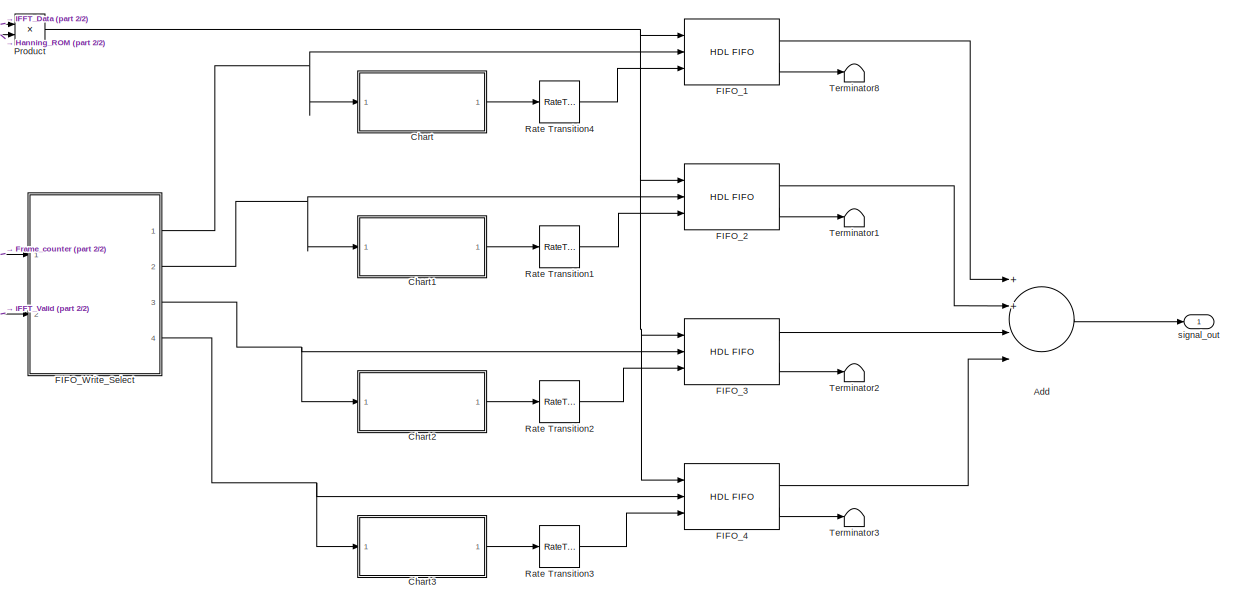
[diagram: JMAP Noise Reduction/Synthesis/Overlap_and_Add - part 1/2, center side, full height]
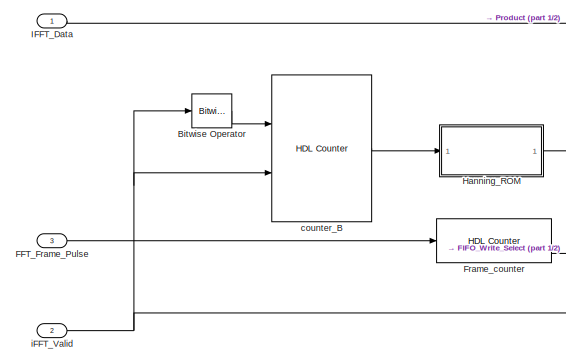
[diagram: JMAP Noise Reduction/Synthesis/Overlap_and_Add - part 2/2, top left region]
BLOCK [SubSystem] JMAP Noise Reduction/Synthesis/Overlap_and_Add
  Ports = [3, 1]
  RequestExecContextInheritance = off
BLOCK [Sum] JMAP Noise Reduction/Synthesis/Overlap_and_Add/Add
  InputSameDT = off
  Inputs = 4
  OutDataTypeStr = Inherit: Inherit via internal rule
  Ports = [4, 1]
  SaturateOnIntegerOverflow = off
BLOCK [Reference] JMAP Noise Reduction/Synthesis/Overlap_and_Add/Bitwise Operator  REF=simulink/Logic and Bit
Operations/Bitwise
Operator
  Ports = [1, 1]
  SourceBlock = simulink/Logic and Bit\nOperations/Bitwise\nOperator
  SourceProductBaseCode = SL
  SourceProductName = Simulink
  SourceType = Bitwise Operator
BLOCK [SubSystem] JMAP Noise Reduction/Synthesis/Overlap_and_Add/Chart
  ErrorFcn = Stateflow.Translate.translate
  PermitHierarchicalResolution = ExplicitOnly
  Ports = [1, 1]
  RequestExecContextInheritance = off
  SFBlockType = Chart
  TreatAsAtomicUnit = on
BLOCK [Demux] JMAP Noise Reduction/Synthesis/Overlap_and_Add/Chart/ Demux 
  Outputs = 1
  Ports = [1, 1]
BLOCK [S-Function] JMAP Noise Reduction/Synthesis/Overlap_and_Add/Chart/ SFunction 
  EnableBusSupport = on
  FunctionName = sf_sfun
  PortCounts = [1 2]
  Ports = [1, 2]
  SFcnIsStateOwnerBlock = off
  SFunctionDeploymentMode = off
  Tag = Stateflow S-Function JMAP_Postfilt_SEModelv1d1 8
BLOCK [Terminator] JMAP Noise Reduction/Synthesis/Overlap_and_Add/Chart/ Terminator 
BLOCK [Outport] JMAP Noise Reduction/Synthesis/Overlap_and_Add/Chart/Pop_Valid
  IconDisplay = Port number
BLOCK [Inport] JMAP Noise Reduction/Synthesis/Overlap_and_Add/Chart/valid
  IconDisplay = Port number
BLOCK [SubSystem] JMAP Noise Reduction/Synthesis/Overlap_and_Add/Chart1
  ErrorFcn = Stateflow.Translate.translate
  PermitHierarchicalResolution = ExplicitOnly
  Ports = [1, 1]
  RequestExecContextInheritance = off
  SFBlockType = Chart
  TreatAsAtomicUnit = on
BLOCK [Demux] JMAP Noise Reduction/Synthesis/Overlap_and_Add/Chart1/ Demux 
  Outputs = 1
  Ports = [1, 1]
BLOCK [S-Function] JMAP Noise Reduction/Synthesis/Overlap_and_Add/Chart1/ SFunction 
  EnableBusSupport = on
  FunctionName = sf_sfun
  PortCounts = [1 2]
  Ports = [1, 2]
  SFcnIsStateOwnerBlock = off
  SFunctionDeploymentMode = off
  Tag = Stateflow S-Function JMAP_Postfilt_SEModelv1d1 1
BLOCK [Terminator] JMAP Noise Reduction/Synthesis/Overlap_and_Add/Chart1/ Terminator 
BLOCK [Outport] JMAP Noise Reduction/Synthesis/Overlap_and_Add/Chart1/Pop_Valid
  IconDisplay = Port number
BLOCK [Inport] JMAP Noise Reduction/Synthesis/Overlap_and_Add/Chart1/valid
  IconDisplay = Port number
BLOCK [SubSystem] JMAP Noise Reduction/Synthesis/Overlap_and_Add/Chart2
  ErrorFcn = Stateflow.Translate.translate
  PermitHierarchicalResolution = ExplicitOnly
  Ports = [1, 1]
  RequestExecContextInheritance = off
  SFBlockType = Chart
  TreatAsAtomicUnit = on
BLOCK [Demux] JMAP Noise Reduction/Synthesis/Overlap_and_Add/Chart2/ Demux 
  Outputs = 1
  Ports = [1, 1]
BLOCK [S-Function] JMAP Noise Reduction/Synthesis/Overlap_and_Add/Chart2/ SFunction 
  EnableBusSupport = on
  FunctionName = sf_sfun
  PortCounts = [1 2]
  Ports = [1, 2]
  SFcnIsStateOwnerBlock = off
  SFunctionDeploymentMode = off
  Tag = Stateflow S-Function JMAP_Postfilt_SEModelv1d1 3
BLOCK [Terminator] JMAP Noise Reduction/Synthesis/Overlap_and_Add/Chart2/ Terminator 
BLOCK [Outport] JMAP Noise Reduction/Synthesis/Overlap_and_Add/Chart2/Pop_Valid
  IconDisplay = Port number
BLOCK [Inport] JMAP Noise Reduction/Synthesis/Overlap_and_Add/Chart2/valid
  IconDisplay = Port number
BLOCK [SubSystem] JMAP Noise Reduction/Synthesis/Overlap_and_Add/Chart3
  ErrorFcn = Stateflow.Translate.translate
  PermitHierarchicalResolution = ExplicitOnly
  Ports = [1, 1]
  RequestExecContextInheritance = off
  SFBlockType = Chart
  TreatAsAtomicUnit = on
BLOCK [Demux] JMAP Noise Reduction/Synthesis/Overlap_and_Add/Chart3/ Demux 
  Outputs = 1
  Ports = [1, 1]
BLOCK [S-Function] JMAP Noise Reduction/Synthesis/Overlap_and_Add/Chart3/ SFunction 
  EnableBusSupport = on
  FunctionName = sf_sfun
  PortCounts = [1 2]
  Ports = [1, 2]
  SFcnIsStateOwnerBlock = off
  SFunctionDeploymentMode = off
  Tag = Stateflow S-Function JMAP_Postfilt_SEModelv1d1 4
BLOCK [Terminator] JMAP Noise Reduction/Synthesis/Overlap_and_Add/Chart3/ Terminator 
BLOCK [Outport] JMAP Noise Reduction/Synthesis/Overlap_and_Add/Chart3/Pop_Valid
  IconDisplay = Port number
BLOCK [Inport] JMAP Noise Reduction/Synthesis/Overlap_and_Add/Chart3/valid
  IconDisplay = Port number
BLOCK [Inport] JMAP Noise Reduction/Synthesis/Overlap_and_Add/FFT_Frame_Pulse
  IconDisplay = Port number
  Port = 3
BLOCK [Reference] JMAP Noise Reduction/Synthesis/Overlap_and_Add/FIFO_1  REF=hdlsllib/HDL RAMs/HDL FIFO
  Ports = [3, 2]
  SourceBlock = hdlsllib/HDL RAMs/HDL FIFO
  SourceProductBaseCode = HD
  SourceProductName = HDL Coder
  SourceType = HDL_FIFO
BLOCK [Reference] JMAP Noise Reduction/Synthesis/Overlap_and_Add/FIFO_2  REF=hdlsllib/HDL RAMs/HDL FIFO
  Ports = [3, 2]
  SourceBlock = hdlsllib/HDL RAMs/HDL FIFO
  SourceProductBaseCode = HD
  SourceProductName = HDL Coder
  SourceType = HDL_FIFO
BLOCK [Reference] JMAP Noise Reduction/Synthesis/Overlap_and_Add/FIFO_3  REF=hdlsllib/HDL RAMs/HDL FIFO
  Ports = [3, 2]
  SourceBlock = hdlsllib/HDL RAMs/HDL FIFO
  SourceProductBaseCode = HD
  SourceProductName = HDL Coder
  SourceType = HDL_FIFO
BLOCK [Reference] JMAP Noise Reduction/Synthesis/Overlap_and_Add/FIFO_4  REF=hdlsllib/HDL RAMs/HDL FIFO
  Ports = [3, 2]
  SourceBlock = hdlsllib/HDL RAMs/HDL FIFO
  SourceProductBaseCode = HD
  SourceProductName = HDL Coder
  SourceType = HDL_FIFO
BLOCK [SubSystem] JMAP Noise Reduction/Synthesis/Overlap_and_Add/FIFO_Write_Select
  ErrorFcn = Stateflow.Translate.translate
  PermitHierarchicalResolution = ExplicitOnly
  Ports = [2, 4]
  RequestExecContextInheritance = off
  SFBlockType = MATLAB Function
  TreatAsAtomicUnit = on
BLOCK [Demux] JMAP Noise Reduction/Synthesis/Overlap_and_Add/FIFO_Write_Select/ Demux 
  Outputs = 1
  Ports = [1, 1]
BLOCK [S-Function] JMAP Noise Reduction/Synthesis/Overlap_and_Add/FIFO_Write_Select/ SFunction 
  EnableBusSupport = on
  FunctionName = sf_sfun
  PortCounts = [2 5]
  Ports = [2, 5]
  SFcnIsStateOwnerBlock = off
  SFunctionDeploymentMode = off
  Tag = Stateflow S-Function JMAP_Postfilt_SEModelv1d1 2
BLOCK [Terminator] JMAP Noise Reduction/Synthesis/Overlap_and_Add/FIFO_Write_Select/ Terminator 
BLOCK [Inport] JMAP Noise Reduction/Synthesis/Overlap_and_Add/FIFO_Write_Select/fifo_counter
  IconDisplay = Port number
BLOCK [Outport] JMAP Noise Reduction/Synthesis/Overlap_and_Add/FIFO_Write_Select/valid_1
  IconDisplay = Port number
BLOCK [Outport] JMAP Noise Reduction/Synthesis/Overlap_and_Add/FIFO_Write_Select/valid_2
  IconDisplay = Port number
  Port = 2
BLOCK [Outport] JMAP Noise Reduction/Synthesis/Overlap_and_Add/FIFO_Write_Select/valid_3
  IconDisplay = Port number
  Port = 3
BLOCK [Outport] JMAP Noise Reduction/Synthesis/Overlap_and_Add/FIFO_Write_Select/valid_4
  IconDisplay = Port number
  Port = 4
BLOCK [Inport] JMAP Noise Reduction/Synthesis/Overlap_and_Add/FIFO_Write_Select/valid_signal
  IconDisplay = Port number
  Port = 2
BLOCK [Reference] JMAP Noise Reduction/Synthesis/Overlap_and_Add/Frame_counter  REF=hdlsllib/Sources/HDL Counter
  Ports = [1, 1]
  SourceBlock = hdlsllib/Sources/HDL Counter
  SourceProductBaseCode = HD
  SourceProductName = HDL Coder
  SourceType = HDL Counter
BLOCK [SubSystem] JMAP Noise Reduction/Synthesis/Overlap_and_Add/Hanning_ROM
  Ports = [1, 1]
  RequestExecContextInheritance = off
BLOCK [Inport] JMAP Noise Reduction/Synthesis/Overlap_and_Add/Hanning_ROM/Index
  IconDisplay = Port number
BLOCK [Lookup_n-D] JMAP Noise Reduction/Synthesis/Overlap_and_Add/Hanning_ROM/Lookup Table
  BreakpointsForDimension1 = [0:FFT_size]
  DiagnosticForOutOfRangeInput = Error
  ExtrapMethod = Clip
  IndexSearchMethod = Evenly spaced points
  InterpMethod = Flat
  NumberOfTableDimensions = 1
  OutDataTypeStr = double
  Ports = [1, 1]
  RndMeth = Simplest
  Table = hanning(FFT_size+1)
  UseLastTableValue = on
BLOCK [UnitDelay] JMAP Noise Reduction/Synthesis/Overlap_and_Add/Hanning_ROM/Unit Delay
  HasFrameUpgradeWarning = on
  SampleTime = -1
BLOCK [Outport] JMAP Noise Reduction/Synthesis/Overlap_and_Add/Hanning_ROM/hanning_value
  IconDisplay = Port number
BLOCK [Inport] JMAP Noise Reduction/Synthesis/Overlap_and_Add/IFFT_Data
  IconDisplay = Port number
BLOCK [Product] JMAP Noise Reduction/Synthesis/Overlap_and_Add/Product
  InputSameDT = off
  OutDataTypeStr = Inherit: Inherit via internal rule
  Ports = [2, 1]
  RndMeth = Floor
  SaturateOnIntegerOverflow = off
BLOCK [RateTransition] JMAP Noise Reduction/Synthesis/Overlap_and_Add/Rate Transition1
  OutPortSampleTimeMultiple = SysRate_Upsample_Factor
  OutPortSampleTimeOpt = Multiple of input port sample time
BLOCK [RateTransition] JMAP Noise Reduction/Synthesis/Overlap_and_Add/Rate Transition2
  OutPortSampleTimeMultiple = SysRate_Upsample_Factor
  OutPortSampleTimeOpt = Multiple of input port sample time
BLOCK [RateTransition] JMAP Noise Reduction/Synthesis/Overlap_and_Add/Rate Transition3
  OutPortSampleTimeMultiple = SysRate_Upsample_Factor
  OutPortSampleTimeOpt = Multiple of input port sample time
BLOCK [RateTransition] JMAP Noise Reduction/Synthesis/Overlap_and_Add/Rate Transition4
  OutPortSampleTimeMultiple = SysRate_Upsample_Factor
  OutPortSampleTimeOpt = Multiple of input port sample time
BLOCK [Terminator] JMAP Noise Reduction/Synthesis/Overlap_and_Add/Terminator1
BLOCK [Terminator] JMAP Noise Reduction/Synthesis/Overlap_and_Add/Terminator2
BLOCK [Terminator] JMAP Noise Reduction/Synthesis/Overlap_and_Add/Terminator3
BLOCK [Terminator] JMAP Noise Reduction/Synthesis/Overlap_and_Add/Terminator8
BLOCK [Reference] JMAP Noise Reduction/Synthesis/Overlap_and_Add/counter_B  REF=hdlsllib/Sources/HDL Counter
  Ports = [2, 1]
  SourceBlock = hdlsllib/Sources/HDL Counter
  SourceProductBaseCode = HD
  SourceProductName = HDL Coder
  SourceType = HDL Counter
BLOCK [Inport] JMAP Noise Reduction/Synthesis/Overlap_and_Add/iFFT_Valid
  IconDisplay = Port number
  Port = 2
BLOCK [Outport] JMAP Noise Reduction/Synthesis/Overlap_and_Add/signal_out
  IconDisplay = Port number
BLOCK [Reshape] JMAP Noise Reduction/Synthesis/Reshape
  Ports = [1, 1]
BLOCK [Reshape] JMAP Noise Reduction/Synthesis/Reshape1
  Ports = [1, 1]
BLOCK [Terminator] JMAP Noise Reduction/Synthesis/Terminator8
BLOCK [Terminator] JMAP Noise Reduction/Synthesis/Terminator9
BLOCK [Reference] JMAP Noise Reduction/Synthesis/iFFT  REF=dspxfrm3/IFFT
HDL Optimized
  Ports = [2, 3]
  SourceBlock = dspxfrm3/IFFT\nHDL Optimized
  SourceProductBaseCode = DS
  SourceProductName = DSP System Toolbox
  SourceType = IFFT HDL Optimized
BLOCK [Outport] JMAP Noise Reduction/Synthesis/modified_signal_out
  IconDisplay = Port number
BLOCK [Inport] JMAP Noise Reduction/aa
  IconDisplay = Port number
  Port = 3
BLOCK [Inport] JMAP Noise Reduction/beta
  IconDisplay = Port number
  Port = 4
BLOCK [Inport] JMAP Noise Reduction/ksiInit
  IconDisplay = Port number
  Port = 5
BLOCK [Outport] JMAP Noise Reduction/modified_signal
  IconDisplay = Port number
BLOCK [Inport] JMAP Noise Reduction/signal_in
  IconDisplay = Port number
BLOCK [FromWorkspace] Speech Samples from Workspace
  SampleTime = Ts
  VariableName = sp
  ZeroCross = on
BLOCK [ToWorkspace] To Workspace
  FixptAsFi = on
  MaxDataPoints = inf
  Ports = [1]
  SampleTime = -1
  VariableName = sim_result
BLOCK [Reference] Upsample  REF=dspsigops/Upsample
  Ports = [1, 1]
  SourceBlock = dspsigops/Upsample
  SourceProductBaseCode = DS
  SourceProductName = DSP System Toolbox
  SourceType = Upsample
  UserDataPersistent = on
BLOCK [Constant] aa
  SampleTime = Ts*2
  Value = aa
BLOCK [Constant] ksiInit
  SampleTime = Ts*2
  Value = ksiInit
ANNOTATION (root): Noise Input (pre-calculated) passed to the function
ANNOTATION (root): The beta value refers to the trade-off which determines the optimization of the speech enhancement algorithm.
ANNOTATION (root): to play: >> soundsc(double(sim_result),8000)
ANNOTATION JMAP Noise Reduction/Analysis: Hanning window is applied
ANNOTATION JMAP Noise Reduction/Analysis/FFT Frame Buffering: Transition to System Clock Rate for FFT Processing
ANNOTATION JMAP Noise Reduction/Analysis/FFT Frame Buffering: Write input data to buffer at input sample rate
ANNOTATION JMAP Noise Reduction/Analysis/FFT Frame Buffering: Dual Port RAM: Port A is always writing @ 16000 Hz.
ANNOTATION JMAP Noise Reduction/Analysis/FFT Frame Buffering: Port B is always reading @ 48000Hz
ANNOTATION JMAP Noise Reduction/Analysis/FFT Frame Buffering/FFT_pulse_gen: Don't send out start pulses until circular buffer has filled.
ANNOTATION JMAP Noise Reduction/Analysis/FFT Frame Buffering/FFT_pulse_gen/Subsystem: Number of Frames to wait before starting
ANNOTATION JMAP Noise Reduction/Analysis/FFT Frame Buffering/FFT_pulse_gen/Subsystem: Start performing FFTs after enough data has filled the circular buffer. This is due to the fact that we don't want the read pointer (addr_B) to catch up with the write pointer (addr_A) because if it does, the DPRAM will throw an assertion error.
ANNOTATION JMAP Noise Reduction/Analysis/FFT Frame Buffering/addr_A_offset: Add 1 to counter since the read pointer (addr_B) can catch the write pointer (addr_A) if SysRate_Upsample_Factor is large enough
ANNOTATION JMAP Noise Reduction/Frequency_Domain_Processing/Frequency Analysis/Filter Signal/Custom FIR Filter: Multiply Coefficients with gain of 1/N
ANNOTATION JMAP Noise Reduction/Frequency_Domain_Processing/Frequency Analysis/Filter Signal/Custom FIR Filter: Split the coefficients to mulitply into the signal
ANNOTATION JMAP Noise Reduction/Frequency_Domain_Processing/Frequency Analysis/Frame Magnitude Calc Posteriori Noise Calc/Subsystem1: check max min value set from code
ANNOTATION JMAP Noise Reduction/Frequency_Domain_Processing/Frequency Analysis/KSI Calculations: Take the original aa and the PostSNR that
ANNOTATION JMAP Noise Reduction/Synthesis: Note 1: Reshape is to avoid a simulink error. Adding a FIFO to the iFFT block causes the iFFT to change its output datatypes, i.e. the data and valid signals become a [1x1] matrix (Simulink Bug). This work around was given by Mathworks tech support (March 16, 2018). Matlab 2017b
ANNOTATION JMAP Noise Reduction/Synthesis: Making the assumption here that the frequency domain processing preserved the complex conjugate pairs.
ANNOTATION JMAP Noise Reduction/Synthesis: See Note 1
LINE Beta:1 -> JMAP Noise Reduction:4
LINE Data Type Conversion:1 -> JMAP Noise Reduction:1
LINE FFT_size:1 -> JMAP Noise Reduction:2
LINE JMAP Noise Reduction/Analysis/Data Type Conversion:1 -> JMAP Noise Reduction/Analysis/FFT_data:1
LINE JMAP Noise Reduction/Analysis/FFT Frame Buffering/Always_Read_B:1 -> JMAP Noise Reduction/Analysis/FFT Frame Buffering/DPRAM:6
LINE JMAP Noise Reduction/Analysis/FFT Frame Buffering/Always_Write_A:1 -> JMAP Noise Reduction/Analysis/FFT Frame Buffering/DPRAM:3
LINE JMAP Noise Reduction/Analysis/FFT Frame Buffering/DPRAM:1 -> JMAP Noise Reduction/Analysis/FFT Frame Buffering/Terminator7:1
LINE JMAP Noise Reduction/Analysis/FFT Frame Buffering/DPRAM:2 -> JMAP Noise Reduction/Analysis/FFT Frame Buffering/Product:1
LINE JMAP Noise Reduction/Analysis/FFT Frame Buffering/Data Type Conversion1:1 -> JMAP Noise Reduction/Analysis/FFT Frame Buffering/DPRAM:4
LINE JMAP Noise Reduction/Analysis/FFT Frame Buffering/Data Type Conversion:1 -> JMAP Noise Reduction/Analysis/FFT Frame Buffering/Data_to_FFT:1
LINE JMAP Noise Reduction/Analysis/FFT Frame Buffering/FFT_pulse_gen/FFT_Frame_Pulse_Gen/Bit Slice:1 -> JMAP Noise Reduction/Analysis/FFT Frame Buffering/FFT_pulse_gen/FFT_Frame_Pulse_Gen/Compare To Zero:1
LINE JMAP Noise Reduction/Analysis/FFT Frame Buffering/FFT_pulse_gen/FFT_Frame_Pulse_Gen/Compare To Zero:1 -> JMAP Noise Reduction/Analysis/FFT Frame Buffering/FFT_pulse_gen/FFT_Frame_Pulse_Gen/Frame_Pulse:1
LINE JMAP Noise Reduction/Analysis/FFT Frame Buffering/FFT_pulse_gen/FFT_Frame_Pulse_Gen/counter_value :1 -> JMAP Noise Reduction/Analysis/FFT Frame Buffering/FFT_pulse_gen/FFT_Frame_Pulse_Gen/Bit Slice:1
LINE JMAP Noise Reduction/Analysis/FFT Frame Buffering/FFT_pulse_gen/FFT_Frame_Pulse_Gen:1 -> JMAP Noise Reduction/Analysis/FFT Frame Buffering/FFT_pulse_gen/Subsystem:1
NET JMAP Noise Reduction/Analysis/FFT Frame Buffering/FFT_pulse_gen/Subsystem/Bitwise Operator:1 -> JMAP Noise Reduction/Analysis/FFT Frame Buffering/FFT_pulse_gen/Subsystem/Enable_FFT_Frames:1, JMAP Noise Reduction/Analysis/FFT Frame Buffering/FFT_pulse_gen/Subsystem/Logical Operator1:2
NET JMAP Noise Reduction/Analysis/FFT Frame Buffering/FFT_pulse_gen/Subsystem/Compare To Constant:1 -> JMAP Noise Reduction/Analysis/FFT Frame Buffering/FFT_pulse_gen/Subsystem/Bitwise Operator:1, JMAP Noise Reduction/Analysis/FFT Frame Buffering/FFT_pulse_gen/Subsystem/Logical Operator:1
NET JMAP Noise Reduction/Analysis/FFT Frame Buffering/FFT_pulse_gen/Subsystem/Frame_Pulse:1 -> JMAP Noise Reduction/Analysis/FFT Frame Buffering/FFT_pulse_gen/Subsystem/Logical Operator1:1, JMAP Noise Reduction/Analysis/FFT Frame Buffering/FFT_pulse_gen/Subsystem/Logical Operator:2
LINE JMAP Noise Reduction/Analysis/FFT Frame Buffering/FFT_pulse_gen/Subsystem/Initial_frame_count:1 -> JMAP Noise Reduction/Analysis/FFT Frame Buffering/FFT_pulse_gen/Subsystem/Compare To Constant:1
LINE JMAP Noise Reduction/Analysis/FFT Frame Buffering/FFT_pulse_gen/Subsystem/Logical Operator1:1 -> JMAP Noise Reduction/Analysis/FFT Frame Buffering/FFT_pulse_gen/Subsystem/FFT_Frame_Start:1
LINE JMAP Noise Reduction/Analysis/FFT Frame Buffering/FFT_pulse_gen/Subsystem/Logical Operator:1 -> JMAP Noise Reduction/Analysis/FFT Frame Buffering/FFT_pulse_gen/Subsystem/Initial_frame_count:1
LINE JMAP Noise Reduction/Analysis/FFT Frame Buffering/FFT_pulse_gen/Subsystem:1 -> JMAP Noise Reduction/Analysis/FFT Frame Buffering/FFT_pulse_gen/FFT_start_pulse:1
LINE JMAP Noise Reduction/Analysis/FFT Frame Buffering/FFT_pulse_gen/Subsystem:2 -> JMAP Noise Reduction/Analysis/FFT Frame Buffering/FFT_pulse_gen/Enable_FFTs:1
LINE JMAP Noise Reduction/Analysis/FFT Frame Buffering/FFT_pulse_gen/counter:1 -> JMAP Noise Reduction/Analysis/FFT Frame Buffering/FFT_pulse_gen/FFT_Frame_Pulse_Gen:1
LINE JMAP Noise Reduction/Analysis/FFT Frame Buffering/FFT_pulse_gen:1 -> JMAP Noise Reduction/Analysis/FFT Frame Buffering/Upsample:1
LINE JMAP Noise Reduction/Analysis/FFT Frame Buffering/FFT_pulse_gen:2 -> JMAP Noise Reduction/Analysis/FFT Frame Buffering/Rate Transition:1
LINE JMAP Noise Reduction/Analysis/FFT Frame Buffering/Hanning_ROM/Index:1 -> JMAP Noise Reduction/Analysis/FFT Frame Buffering/Hanning_ROM/Lookup Table:1
LINE JMAP Noise Reduction/Analysis/FFT Frame Buffering/Hanning_ROM/Lookup Table:1 -> JMAP Noise Reduction/Analysis/FFT Frame Buffering/Hanning_ROM/Unit Delay:1
LINE JMAP Noise Reduction/Analysis/FFT Frame Buffering/Hanning_ROM/Unit Delay:1 -> JMAP Noise Reduction/Analysis/FFT Frame Buffering/Hanning_ROM/hanning_value:1
LINE JMAP Noise Reduction/Analysis/FFT Frame Buffering/Hanning_ROM:1 -> JMAP Noise Reduction/Analysis/FFT Frame Buffering/Product:2
LINE JMAP Noise Reduction/Analysis/FFT Frame Buffering/Never_Write_B:1 -> JMAP Noise Reduction/Analysis/FFT Frame Buffering/Data Type Conversion1:1
LINE JMAP Noise Reduction/Analysis/FFT Frame Buffering/Product:1 -> JMAP Noise Reduction/Analysis/FFT Frame Buffering/Data Type Conversion:1
LINE JMAP Noise Reduction/Analysis/FFT Frame Buffering/Rate Transition:1 -> JMAP Noise Reduction/Analysis/FFT Frame Buffering/addr_B_gen:2
LINE JMAP Noise Reduction/Analysis/FFT Frame Buffering/Sample_Data_in:1 -> JMAP Noise Reduction/Analysis/FFT Frame Buffering/DPRAM:1
NET JMAP Noise Reduction/Analysis/FFT Frame Buffering/Upsample:1 -> JMAP Noise Reduction/Analysis/FFT Frame Buffering/FFT_Frame_Start_Pulse:1, JMAP Noise Reduction/Analysis/FFT Frame Buffering/addr_B_gen:1
LINE JMAP Noise Reduction/Analysis/FFT Frame Buffering/addr_A_offset/Add:1 -> JMAP Noise Reduction/Analysis/FFT Frame Buffering/addr_A_offset/addr_A:1
LINE JMAP Noise Reduction/Analysis/FFT Frame Buffering/addr_A_offset/counter_A:1 -> JMAP Noise Reduction/Analysis/FFT Frame Buffering/addr_A_offset/Add:1
LINE JMAP Noise Reduction/Analysis/FFT Frame Buffering/addr_A_offset/write_offset:1 -> JMAP Noise Reduction/Analysis/FFT Frame Buffering/addr_A_offset/Add:2
LINE JMAP Noise Reduction/Analysis/FFT Frame Buffering/addr_A_offset:1 -> JMAP Noise Reduction/Analysis/FFT Frame Buffering/DPRAM:2
NET JMAP Noise Reduction/Analysis/FFT Frame Buffering/addr_B_gen/Logical Operator1:1 -> JMAP Noise Reduction/Analysis/FFT Frame Buffering/addr_B_gen/FFT_Valid:1, JMAP Noise Reduction/Analysis/FFT Frame Buffering/addr_B_gen/counter_B:3
NET JMAP Noise Reduction/Analysis/FFT Frame Buffering/addr_B_gen/addr_B_gen_enable/B_Enable_Counter:1 -> JMAP Noise Reduction/Analysis/FFT Frame Buffering/addr_B_gen/addr_B_gen_enable/Frame_Index:1, JMAP Noise Reduction/Analysis/FFT Frame Buffering/addr_B_gen/addr_B_gen_enable/Relational Operator:1
LINE JMAP Noise Reduction/Analysis/FFT Frame Buffering/addr_B_gen/addr_B_gen_enable/Constant5:1 -> JMAP Noise Reduction/Analysis/FFT Frame Buffering/addr_B_gen/addr_B_gen_enable/Relational Operator:2
NET JMAP Noise Reduction/Analysis/FFT Frame Buffering/addr_B_gen/addr_B_gen_enable/Relational Operator:1 -> JMAP Noise Reduction/Analysis/FFT Frame Buffering/addr_B_gen/addr_B_gen_enable/B_Enable_Counter:2, JMAP Noise Reduction/Analysis/FFT Frame Buffering/addr_B_gen/addr_B_gen_enable/enable_B:1
LINE JMAP Noise Reduction/Analysis/FFT Frame Buffering/addr_B_gen/addr_B_gen_enable/Start_Address_Counter:1 -> JMAP Noise Reduction/Analysis/FFT Frame Buffering/addr_B_gen/addr_B_gen_enable/Start_Address:1
NET JMAP Noise Reduction/Analysis/FFT Frame Buffering/addr_B_gen/addr_B_gen_enable/start:1 -> JMAP Noise Reduction/Analysis/FFT Frame Buffering/addr_B_gen/addr_B_gen_enable/B_Enable_Counter:1, JMAP Noise Reduction/Analysis/FFT Frame Buffering/addr_B_gen/addr_B_gen_enable/Start_Address_Counter:1
LINE JMAP Noise Reduction/Analysis/FFT Frame Buffering/addr_B_gen/addr_B_gen_enable:1 -> JMAP Noise Reduction/Analysis/FFT Frame Buffering/addr_B_gen/Logical Operator1:1
LINE JMAP Noise Reduction/Analysis/FFT Frame Buffering/addr_B_gen/addr_B_gen_enable:2 -> JMAP Noise Reduction/Analysis/FFT Frame Buffering/addr_B_gen/counter_B:2
LINE JMAP Noise Reduction/Analysis/FFT Frame Buffering/addr_B_gen/addr_B_gen_enable:3 -> JMAP Noise Reduction/Analysis/FFT Frame Buffering/addr_B_gen/Frame_counter:1
LINE JMAP Noise Reduction/Analysis/FFT Frame Buffering/addr_B_gen/counter_B:1 -> JMAP Noise Reduction/Analysis/FFT Frame Buffering/addr_B_gen/addr_B:1
LINE JMAP Noise Reduction/Analysis/FFT Frame Buffering/addr_B_gen/enable:1 -> JMAP Noise Reduction/Analysis/FFT Frame Buffering/addr_B_gen/Logical Operator1:2
NET JMAP Noise Reduction/Analysis/FFT Frame Buffering/addr_B_gen/start:1 -> JMAP Noise Reduction/Analysis/FFT Frame Buffering/addr_B_gen/addr_B_gen_enable:1, JMAP Noise Reduction/Analysis/FFT Frame Buffering/addr_B_gen/counter_B:1
LINE JMAP Noise Reduction/Analysis/FFT Frame Buffering/addr_B_gen:1 -> JMAP Noise Reduction/Analysis/FFT Frame Buffering/DPRAM:5
LINE JMAP Noise Reduction/Analysis/FFT Frame Buffering/addr_B_gen:2 -> JMAP Noise Reduction/Analysis/FFT Frame Buffering/Hanning_ROM:1
LINE JMAP Noise Reduction/Analysis/FFT Frame Buffering/addr_B_gen:3 -> JMAP Noise Reduction/Analysis/FFT Frame Buffering/Valid_to_FFT:1
NET JMAP Noise Reduction/Analysis/FFT Frame Buffering/counter_A:1 -> JMAP Noise Reduction/Analysis/FFT Frame Buffering/FFT_pulse_gen:1, JMAP Noise Reduction/Analysis/FFT Frame Buffering/addr_A_offset:1
LINE JMAP Noise Reduction/Analysis/FFT Frame Buffering:1 -> JMAP Noise Reduction/Analysis/FFT:1
LINE JMAP Noise Reduction/Analysis/FFT Frame Buffering:2 -> JMAP Noise Reduction/Analysis/FFT:2
LINE JMAP Noise Reduction/Analysis/FFT Frame Buffering:3 -> JMAP Noise Reduction/Analysis/FFT_frame_pulse:1
LINE JMAP Noise Reduction/Analysis/FFT:1 -> JMAP Noise Reduction/Analysis/Data Type Conversion:1
LINE JMAP Noise Reduction/Analysis/FFT:2 -> JMAP Noise Reduction/Analysis/FFT_valid:1
LINE JMAP Noise Reduction/Analysis/FFT:3 -> JMAP Noise Reduction/Analysis/Terminator6:1
LINE JMAP Noise Reduction/Analysis/Signal_in:1 -> JMAP Noise Reduction/Analysis/FFT Frame Buffering:1
LINE JMAP Noise Reduction/Analysis:1 -> JMAP Noise Reduction/Frequency_Domain_Processing:5
LINE JMAP Noise Reduction/Analysis:2 -> JMAP Noise Reduction/Frequency_Domain_Processing:6
LINE JMAP Noise Reduction/Analysis:3 -> JMAP Noise Reduction/Synthesis:3
LINE JMAP Noise Reduction/FFT_size:1 -> JMAP Noise Reduction/Frequency_Domain_Processing:1
LINE JMAP Noise Reduction/Frequency_Domain_Processing/Deserializer1D1:1 -> JMAP Noise Reduction/Frequency_Domain_Processing/Serializer1D1:1
LINE JMAP Noise Reduction/Frequency_Domain_Processing/Deserializer1D:1 -> JMAP Noise Reduction/Frequency_Domain_Processing/Frequency Analysis:1
LINE JMAP Noise Reduction/Frequency_Domain_Processing/FFT_results:1 -> JMAP Noise Reduction/Frequency_Domain_Processing/Deserializer1D:1
LINE JMAP Noise Reduction/Frequency_Domain_Processing/FFT_size:1 -> JMAP Noise Reduction/Frequency_Domain_Processing/Frequency Analysis:2
NET JMAP Noise Reduction/Frequency_Domain_Processing/Frequency Analysis/Data Type Conversion:1 -> JMAP Noise Reduction/Frequency_Domain_Processing/Frequency Analysis/Filter Signal:1, JMAP Noise Reduction/Frequency_Domain_Processing/Frequency Analysis/Frame Magnitude Calc Posteriori Noise Calc:1
LINE JMAP Noise Reduction/Frequency_Domain_Processing/Frequency Analysis/FFT_results:1 -> JMAP Noise Reduction/Frequency_Domain_Processing/Frequency Analysis/Data Type Conversion:1
LINE JMAP Noise Reduction/Frequency_Domain_Processing/Frequency Analysis/FFT_size:1 -> JMAP Noise Reduction/Frequency_Domain_Processing/Frequency Analysis/Voice Activity Detector Calculations (VAD):4
LINE JMAP Noise Reduction/Frequency_Domain_Processing/Frequency Analysis/FIR coeff Calculations/Calculate Coeffs and Filter Length/Compare To Constant:1 -> JMAP Noise Reduction/Frequency_Domain_Processing/Frequency Analysis/FIR coeff Calculations/Calculate Coeffs and Filter Length/Switch:2
LINE JMAP Noise Reduction/Frequency_Domain_Processing/Frequency Analysis/FIR coeff Calculations/Calculate Coeffs and Filter Length/Constant:1 -> JMAP Noise Reduction/Frequency_Domain_Processing/Frequency Analysis/FIR coeff Calculations/Calculate Coeffs and Filter Length/Switch:1
LINE JMAP Noise Reduction/Frequency_Domain_Processing/Frequency Analysis/FIR coeff Calculations/Calculate Coeffs and Filter Length/Enabled Subsystem1/Constant1:1 -> JMAP Noise Reduction/Frequency_Domain_Processing/Frequency Analysis/FIR coeff Calculations/Calculate Coeffs and Filter Length/Enabled Subsystem1/Divide:2
NET JMAP Noise Reduction/Frequency_Domain_Processing/Frequency Analysis/FIR coeff Calculations/Calculate Coeffs and Filter Length/Enabled Subsystem1/Constant:1 -> JMAP Noise Reduction/Frequency_Domain_Processing/Frequency Analysis/FIR coeff Calculations/Calculate Coeffs and Filter Length/Enabled Subsystem1/Subtract:2, JMAP Noise Reduction/Frequency_Domain_Processing/Frequency Analysis/FIR coeff Calculations/Calculate Coeffs and Filter Length/Enabled Subsystem1/add:2
LINE JMAP Noise Reduction/Frequency_Domain_Processing/Frequency Analysis/FIR coeff Calculations/Calculate Coeffs and Filter Length/Enabled Subsystem1/Divide:1 -> JMAP Noise Reduction/Frequency_Domain_Processing/Frequency Analysis/FIR coeff Calculations/Calculate Coeffs and Filter Length/Enabled Subsystem1/Subtract:1
LINE JMAP Noise Reduction/Frequency_Domain_Processing/Frequency Analysis/FIR coeff Calculations/Calculate Coeffs and Filter Length/Enabled Subsystem1/Gain:1 -> JMAP Noise Reduction/Frequency_Domain_Processing/Frequency Analysis/FIR coeff Calculations/Calculate Coeffs and Filter Length/Enabled Subsystem1/add:1
LINE JMAP Noise Reduction/Frequency_Domain_Processing/Frequency Analysis/FIR coeff Calculations/Calculate Coeffs and Filter Length/Enabled Subsystem1/PRT:1 -> JMAP Noise Reduction/Frequency_Domain_Processing/Frequency Analysis/FIR coeff Calculations/Calculate Coeffs and Filter Length/Enabled Subsystem1/Divide:1
LINE JMAP Noise Reduction/Frequency_Domain_Processing/Frequency Analysis/FIR coeff Calculations/Calculate Coeffs and Filter Length/Enabled Subsystem1/Round:1 -> JMAP Noise Reduction/Frequency_Domain_Processing/Frequency Analysis/FIR coeff Calculations/Calculate Coeffs and Filter Length/Enabled Subsystem1/Gain:1
LINE JMAP Noise Reduction/Frequency_Domain_Processing/Frequency Analysis/FIR coeff Calculations/Calculate Coeffs and Filter Length/Enabled Subsystem1/Subtract:1 -> JMAP Noise Reduction/Frequency_Domain_Processing/Frequency Analysis/FIR coeff Calculations/Calculate Coeffs and Filter Length/Enabled Subsystem1/Round:1
LINE JMAP Noise Reduction/Frequency_Domain_Processing/Frequency Analysis/FIR coeff Calculations/Calculate Coeffs and Filter Length/Enabled Subsystem1/add:1 -> JMAP Noise Reduction/Frequency_Domain_Processing/Frequency Analysis/FIR coeff Calculations/Calculate Coeffs and Filter Length/Enabled Subsystem1/N:1
LINE JMAP Noise Reduction/Frequency_Domain_Processing/Frequency Analysis/FIR coeff Calculations/Calculate Coeffs and Filter Length/Enabled Subsystem1:1 -> JMAP Noise Reduction/Frequency_Domain_Processing/Frequency Analysis/FIR coeff Calculations/Calculate Coeffs and Filter Length/Switch:3
NET JMAP Noise Reduction/Frequency_Domain_Processing/Frequency Analysis/FIR coeff Calculations/Calculate Coeffs and Filter Length/PRT:1 -> JMAP Noise Reduction/Frequency_Domain_Processing/Frequency Analysis/FIR coeff Calculations/Calculate Coeffs and Filter Length/Compare To Constant:1, JMAP Noise Reduction/Frequency_Domain_Processing/Frequency Analysis/FIR coeff Calculations/Calculate Coeffs and Filter Length/Enabled Subsystem1:1
LINE JMAP Noise Reduction/Frequency_Domain_Processing/Frequency Analysis/FIR coeff Calculations/Calculate Coeffs and Filter Length/Switch:1 -> JMAP Noise Reduction/Frequency_Domain_Processing/Frequency Analysis/FIR coeff Calculations/Calculate Coeffs and Filter Length/N:1
LINE JMAP Noise Reduction/Frequency_Domain_Processing/Frequency Analysis/FIR coeff Calculations/Calculate Coeffs and Filter Length:1 -> JMAP Noise Reduction/Frequency_Domain_Processing/Frequency Analysis/FIR coeff Calculations/N:1
LINE JMAP Noise Reduction/Frequency_Domain_Processing/Frequency Analysis/FIR coeff Calculations/PR Calculations/Add1:1 -> JMAP Noise Reduction/Frequency_Domain_Processing/Frequency Analysis/FIR coeff Calculations/PR Calculations/Add2:1
LINE JMAP Noise Reduction/Frequency_Domain_Processing/Frequency Analysis/FIR coeff Calculations/PR Calculations/Add2:1 -> JMAP Noise Reduction/Frequency_Domain_Processing/Frequency Analysis/FIR coeff Calculations/PR Calculations/Divide:2
LINE JMAP Noise Reduction/Frequency_Domain_Processing/Frequency Analysis/FIR coeff Calculations/PR Calculations/Add:1 -> JMAP Noise Reduction/Frequency_Domain_Processing/Frequency Analysis/FIR coeff Calculations/PR Calculations/Divide:1
LINE JMAP Noise Reduction/Frequency_Domain_Processing/Frequency Analysis/FIR coeff Calculations/PR Calculations/Constant:1 -> JMAP Noise Reduction/Frequency_Domain_Processing/Frequency Analysis/FIR coeff Calculations/PR Calculations/Add2:2
LINE JMAP Noise Reduction/Frequency_Domain_Processing/Frequency Analysis/FIR coeff Calculations/PR Calculations/Divide:1 -> JMAP Noise Reduction/Frequency_Domain_Processing/Frequency Analysis/FIR coeff Calculations/PR Calculations/PR:1
LINE JMAP Noise Reduction/Frequency_Domain_Processing/Frequency Analysis/FIR coeff Calculations/PR Calculations/Magnitude Squared1:1 -> JMAP Noise Reduction/Frequency_Domain_Processing/Frequency Analysis/FIR coeff Calculations/PR Calculations/Add1:1
LINE JMAP Noise Reduction/Frequency_Domain_Processing/Frequency Analysis/FIR coeff Calculations/PR Calculations/Magnitude Squared:1 -> JMAP Noise Reduction/Frequency_Domain_Processing/Frequency Analysis/FIR coeff Calculations/PR Calculations/Add:1
LINE JMAP Noise Reduction/Frequency_Domain_Processing/Frequency Analysis/FIR coeff Calculations/PR Calculations/ensig_prev:1 -> JMAP Noise Reduction/Frequency_Domain_Processing/Frequency Analysis/FIR coeff Calculations/PR Calculations/Magnitude Squared:1
LINE JMAP Noise Reduction/Frequency_Domain_Processing/Frequency Analysis/FIR coeff Calculations/PR Calculations/frameMag:1 -> JMAP Noise Reduction/Frequency_Domain_Processing/Frequency Analysis/FIR coeff Calculations/PR Calculations/Magnitude Squared1:1
LINE JMAP Noise Reduction/Frequency_Domain_Processing/Frequency Analysis/FIR coeff Calculations/PR Calculations:1 -> JMAP Noise Reduction/Frequency_Domain_Processing/Frequency Analysis/FIR coeff Calculations/PRT Calculation:1
LINE JMAP Noise Reduction/Frequency_Domain_Processing/Frequency Analysis/FIR coeff Calculations/PRT Calculation/Constant:1 -> JMAP Noise Reduction/Frequency_Domain_Processing/Frequency Analysis/FIR coeff Calculations/PRT Calculation/Switch:1
NET JMAP Noise Reduction/Frequency_Domain_Processing/Frequency Analysis/FIR coeff Calculations/PRT Calculation/PR:1 -> JMAP Noise Reduction/Frequency_Domain_Processing/Frequency Analysis/FIR coeff Calculations/PRT Calculation/Switch:2, JMAP Noise Reduction/Frequency_Domain_Processing/Frequency Analysis/FIR coeff Calculations/PRT Calculation/Switch:3
LINE JMAP Noise Reduction/Frequency_Domain_Processing/Frequency Analysis/FIR coeff Calculations/PRT Calculation/Switch:1 -> JMAP Noise Reduction/Frequency_Domain_Processing/Frequency Analysis/FIR coeff Calculations/PRT Calculation/PRT:1
LINE JMAP Noise Reduction/Frequency_Domain_Processing/Frequency Analysis/FIR coeff Calculations/PRT Calculation:1 -> JMAP Noise Reduction/Frequency_Domain_Processing/Frequency Analysis/FIR coeff Calculations/Calculate Coeffs and Filter Length:1
LINE JMAP Noise Reduction/Frequency_Domain_Processing/Frequency Analysis/FIR coeff Calculations/ensig_prev:1 -> JMAP Noise Reduction/Frequency_Domain_Processing/Frequency Analysis/FIR coeff Calculations/PR Calculations:1
LINE JMAP Noise Reduction/Frequency_Domain_Processing/Frequency Analysis/FIR coeff Calculations/frameMag:1 -> JMAP Noise Reduction/Frequency_Domain_Processing/Frequency Analysis/FIR coeff Calculations/PR Calculations:2
LINE JMAP Noise Reduction/Frequency_Domain_Processing/Frequency Analysis/FIR coeff Calculations:1 -> JMAP Noise Reduction/Frequency_Domain_Processing/Frequency Analysis/Filter Signal:3
LINE JMAP Noise Reduction/Frequency_Domain_Processing/Frequency Analysis/Filter Signal/Complex to Magnitude-Angle:1 -> JMAP Noise Reduction/Frequency_Domain_Processing/Frequency Analysis/Filter Signal/Terminator:1
LINE JMAP Noise Reduction/Frequency_Domain_Processing/Frequency Analysis/Filter Signal/Complex to Magnitude-Angle:2 -> JMAP Noise Reduction/Frequency_Domain_Processing/Frequency Analysis/Filter Signal/Product1:2
LINE JMAP Noise Reduction/Frequency_Domain_Processing/Frequency Analysis/Filter Signal/Constant:1 -> JMAP Noise Reduction/Frequency_Domain_Processing/Frequency Analysis/Filter Signal/Product1:1
NET JMAP Noise Reduction/Frequency_Domain_Processing/Frequency Analysis/Filter Signal/Custom FIR Filter/Abs:1 -> JMAP Noise Reduction/Frequency_Domain_Processing/Frequency Analysis/Filter Signal/Custom FIR Filter/Delay:1, JMAP Noise Reduction/Frequency_Domain_Processing/Frequency Analysis/Filter Signal/Custom FIR Filter/Product:2
LINE JMAP Noise Reduction/Frequency_Domain_Processing/Frequency Analysis/Filter Signal/Custom FIR Filter/Add2:1 -> JMAP Noise Reduction/Frequency_Domain_Processing/Frequency Analysis/Filter Signal/Custom FIR Filter/HPF:1
LINE JMAP Noise Reduction/Frequency_Domain_Processing/Frequency Analysis/Filter Signal/Custom FIR Filter/Add:1 -> JMAP Noise Reduction/Frequency_Domain_Processing/Frequency Analysis/Filter Signal/Custom FIR Filter/Add2:1
LINE JMAP Noise Reduction/Frequency_Domain_Processing/Frequency Analysis/Filter Signal/Custom FIR Filter/Delay1:1 -> JMAP Noise Reduction/Frequency_Domain_Processing/Frequency Analysis/Filter Signal/Custom FIR Filter/Product4:2
NET JMAP Noise Reduction/Frequency_Domain_Processing/Frequency Analysis/Filter Signal/Custom FIR Filter/Delay:1 -> JMAP Noise Reduction/Frequency_Domain_Processing/Frequency Analysis/Filter Signal/Custom FIR Filter/Delay1:1, JMAP Noise Reduction/Frequency_Domain_Processing/Frequency Analysis/Filter Signal/Custom FIR Filter/Product3:2
LINE JMAP Noise Reduction/Frequency_Domain_Processing/Frequency Analysis/Filter Signal/Custom FIR Filter/Demux:1 -> JMAP Noise Reduction/Frequency_Domain_Processing/Frequency Analysis/Filter Signal/Custom FIR Filter/Product:1
LINE JMAP Noise Reduction/Frequency_Domain_Processing/Frequency Analysis/Filter Signal/Custom FIR Filter/Demux:2 -> JMAP Noise Reduction/Frequency_Domain_Processing/Frequency Analysis/Filter Signal/Custom FIR Filter/Product3:1
LINE JMAP Noise Reduction/Frequency_Domain_Processing/Frequency Analysis/Filter Signal/Custom FIR Filter/Demux:3 -> JMAP Noise Reduction/Frequency_Domain_Processing/Frequency Analysis/Filter Signal/Custom FIR Filter/Product4:1
LINE JMAP Noise Reduction/Frequency_Domain_Processing/Frequency Analysis/Filter Signal/Custom FIR Filter/Multiport Switch:1 -> JMAP Noise Reduction/Frequency_Domain_Processing/Frequency Analysis/Filter Signal/Custom FIR Filter/Demux:1
LINE JMAP Noise Reduction/Frequency_Domain_Processing/Frequency Analysis/Filter Signal/Custom FIR Filter/N FIR Coefficients:1 -> JMAP Noise Reduction/Frequency_Domain_Processing/Frequency Analysis/Filter Signal/Custom FIR Filter/Multiport Switch:1
LINE JMAP Noise Reduction/Frequency_Domain_Processing/Frequency Analysis/Filter Signal/Custom FIR Filter/Product3:1 -> JMAP Noise Reduction/Frequency_Domain_Processing/Frequency Analysis/Filter Signal/Custom FIR Filter/Add:1
LINE JMAP Noise Reduction/Frequency_Domain_Processing/Frequency Analysis/Filter Signal/Custom FIR Filter/Product4:1 -> JMAP Noise Reduction/Frequency_Domain_Processing/Frequency Analysis/Filter Signal/Custom FIR Filter/Add2:2
LINE JMAP Noise Reduction/Frequency_Domain_Processing/Frequency Analysis/Filter Signal/Custom FIR Filter/Product:1 -> JMAP Noise Reduction/Frequency_Domain_Processing/Frequency Analysis/Filter Signal/Custom FIR Filter/Add:2
LINE JMAP Noise Reduction/Frequency_Domain_Processing/Frequency Analysis/Filter Signal/Custom FIR Filter/b1:1 -> JMAP Noise Reduction/Frequency_Domain_Processing/Frequency Analysis/Filter Signal/Custom FIR Filter/Multiport Switch:2
LINE JMAP Noise Reduction/Frequency_Domain_Processing/Frequency Analysis/Filter Signal/Custom FIR Filter/b2:1 -> JMAP Noise Reduction/Frequency_Domain_Processing/Frequency Analysis/Filter Signal/Custom FIR Filter/Multiport Switch:3
LINE JMAP Noise Reduction/Frequency_Domain_Processing/Frequency Analysis/Filter Signal/Custom FIR Filter/b3:1 -> JMAP Noise Reduction/Frequency_Domain_Processing/Frequency Analysis/Filter Signal/Custom FIR Filter/Multiport Switch:4
LINE JMAP Noise Reduction/Frequency_Domain_Processing/Frequency Analysis/Filter Signal/Custom FIR Filter/hw:1 -> JMAP Noise Reduction/Frequency_Domain_Processing/Frequency Analysis/Filter Signal/Custom FIR Filter/Abs:1
LINE JMAP Noise Reduction/Frequency_Domain_Processing/Frequency Analysis/Filter Signal/Custom FIR Filter:1 -> JMAP Noise Reduction/Frequency_Domain_Processing/Frequency Analysis/Filter Signal/Product:1
LINE JMAP Noise Reduction/Frequency_Domain_Processing/Frequency Analysis/Filter Signal/Exp:1 -> JMAP Noise Reduction/Frequency_Domain_Processing/Frequency Analysis/Filter Signal/Product2:2
LINE JMAP Noise Reduction/Frequency_Domain_Processing/Frequency Analysis/Filter Signal/N:1 -> JMAP Noise Reduction/Frequency_Domain_Processing/Frequency Analysis/Filter Signal/Custom FIR Filter:1
LINE JMAP Noise Reduction/Frequency_Domain_Processing/Frequency Analysis/Filter Signal/Product1:1 -> JMAP Noise Reduction/Frequency_Domain_Processing/Frequency Analysis/Filter Signal/Exp:1
LINE JMAP Noise Reduction/Frequency_Domain_Processing/Frequency Analysis/Filter Signal/Product2:1 -> JMAP Noise Reduction/Frequency_Domain_Processing/Frequency Analysis/Filter Signal/signal_out:1
NET JMAP Noise Reduction/Frequency_Domain_Processing/Frequency Analysis/Filter Signal/Product:1 -> JMAP Noise Reduction/Frequency_Domain_Processing/Frequency Analysis/Filter Signal/Product2:1, JMAP Noise Reduction/Frequency_Domain_Processing/Frequency Analysis/Filter Signal/Square:1, JMAP Noise Reduction/Frequency_Domain_Processing/Frequency Analysis/Filter Signal/ensig_out:1
LINE JMAP Noise Reduction/Frequency_Domain_Processing/Frequency Analysis/Filter Signal/Square:1 -> JMAP Noise Reduction/Frequency_Domain_Processing/Frequency Analysis/Filter Signal/Xk_prev_out:1
LINE JMAP Noise Reduction/Frequency_Domain_Processing/Frequency Analysis/Filter Signal/frame:1 -> JMAP Noise Reduction/Frequency_Domain_Processing/Frequency Analysis/Filter Signal/Complex to Magnitude-Angle:1
LINE JMAP Noise Reduction/Frequency_Domain_Processing/Frequency Analysis/Filter Signal/frameMag:1 -> JMAP Noise Reduction/Frequency_Domain_Processing/Frequency Analysis/Filter Signal/Product:2
LINE JMAP Noise Reduction/Frequency_Domain_Processing/Frequency Analysis/Filter Signal/hw:1 -> JMAP Noise Reduction/Frequency_Domain_Processing/Frequency Analysis/Filter Signal/Custom FIR Filter:2
LINE JMAP Noise Reduction/Frequency_Domain_Processing/Frequency Analysis/Filter Signal:1 -> JMAP Noise Reduction/Frequency_Domain_Processing/Frequency Analysis/ensig:1
LINE JMAP Noise Reduction/Frequency_Domain_Processing/Frequency Analysis/Filter Signal:2 -> JMAP Noise Reduction/Frequency_Domain_Processing/Frequency Analysis/Xk_prev:1
LINE JMAP Noise Reduction/Frequency_Domain_Processing/Frequency Analysis/Filter Signal:3 -> JMAP Noise Reduction/Frequency_Domain_Processing/Frequency Analysis/signal_out_Model:1
LINE JMAP Noise Reduction/Frequency_Domain_Processing/Frequency Analysis/Frame Magnitude Calc Posteriori Noise Calc/FFT_results:1 -> JMAP Noise Reduction/Frequency_Domain_Processing/Frequency Analysis/Frame Magnitude Calc Posteriori Noise Calc/Subsystem3:1
LINE JMAP Noise Reduction/Frequency_Domain_Processing/Frequency Analysis/Frame Magnitude Calc Posteriori Noise Calc/Subsystem1/Add:1 -> JMAP Noise Reduction/Frequency_Domain_Processing/Frequency Analysis/Frame Magnitude Calc Posteriori Noise Calc/Subsystem1/postSNR:1
LINE JMAP Noise Reduction/Frequency_Domain_Processing/Frequency Analysis/Frame Magnitude Calc Posteriori Noise Calc/Subsystem1/Constant1:1 -> JMAP Noise Reduction/Frequency_Domain_Processing/Frequency Analysis/Frame Magnitude Calc Posteriori Noise Calc/Subsystem1/Min:2
LINE JMAP Noise Reduction/Frequency_Domain_Processing/Frequency Analysis/Frame Magnitude Calc Posteriori Noise Calc/Subsystem1/Constant:1 -> JMAP Noise Reduction/Frequency_Domain_Processing/Frequency Analysis/Frame Magnitude Calc Posteriori Noise Calc/Subsystem1/Add:2
LINE JMAP Noise Reduction/Frequency_Domain_Processing/Frequency Analysis/Frame Magnitude Calc Posteriori Noise Calc/Subsystem1/Divide:1 -> JMAP Noise Reduction/Frequency_Domain_Processing/Frequency Analysis/Frame Magnitude Calc Posteriori Noise Calc/Subsystem1/Min:1
LINE JMAP Noise Reduction/Frequency_Domain_Processing/Frequency Analysis/Frame Magnitude Calc Posteriori Noise Calc/Subsystem1/Min:1 -> JMAP Noise Reduction/Frequency_Domain_Processing/Frequency Analysis/Frame Magnitude Calc Posteriori Noise Calc/Subsystem1/Add:1
LINE JMAP Noise Reduction/Frequency_Domain_Processing/Frequency Analysis/Frame Magnitude Calc Posteriori Noise Calc/Subsystem1/framePower:1 -> JMAP Noise Reduction/Frequency_Domain_Processing/Frequency Analysis/Frame Magnitude Calc Posteriori Noise Calc/Subsystem1/Divide:1
LINE JMAP Noise Reduction/Frequency_Domain_Processing/Frequency Analysis/Frame Magnitude Calc Posteriori Noise Calc/Subsystem1/noiseVariance:1 -> JMAP Noise Reduction/Frequency_Domain_Processing/Frequency Analysis/Frame Magnitude Calc Posteriori Noise Calc/Subsystem1/Divide:2
LINE JMAP Noise Reduction/Frequency_Domain_Processing/Frequency Analysis/Frame Magnitude Calc Posteriori Noise Calc/Subsystem1:1 -> JMAP Noise Reduction/Frequency_Domain_Processing/Frequency Analysis/Frame Magnitude Calc Posteriori Noise Calc/postSNR:1
NET JMAP Noise Reduction/Frequency_Domain_Processing/Frequency Analysis/Frame Magnitude Calc Posteriori Noise Calc/Subsystem3/Abs:1 -> JMAP Noise Reduction/Frequency_Domain_Processing/Frequency Analysis/Frame Magnitude Calc Posteriori Noise Calc/Subsystem3/Square:1, JMAP Noise Reduction/Frequency_Domain_Processing/Frequency Analysis/Frame Magnitude Calc Posteriori Noise Calc/Subsystem3/frameMag:1
LINE JMAP Noise Reduction/Frequency_Domain_Processing/Frequency Analysis/Frame Magnitude Calc Posteriori Noise Calc/Subsystem3/FFT_results:1 -> JMAP Noise Reduction/Frequency_Domain_Processing/Frequency Analysis/Frame Magnitude Calc Posteriori Noise Calc/Subsystem3/Abs:1
LINE JMAP Noise Reduction/Frequency_Domain_Processing/Frequency Analysis/Frame Magnitude Calc Posteriori Noise Calc/Subsystem3/Square:1 -> JMAP Noise Reduction/Frequency_Domain_Processing/Frequency Analysis/Frame Magnitude Calc Posteriori Noise Calc/Subsystem3/framePower:1
LINE JMAP Noise Reduction/Frequency_Domain_Processing/Frequency Analysis/Frame Magnitude Calc Posteriori Noise Calc/Subsystem3:1 -> JMAP Noise Reduction/Frequency_Domain_Processing/Frequency Analysis/Frame Magnitude Calc Posteriori Noise Calc/Subsystem1:1
LINE JMAP Noise Reduction/Frequency_Domain_Processing/Frequency Analysis/Frame Magnitude Calc Posteriori Noise Calc/Subsystem3:2 -> JMAP Noise Reduction/Frequency_Domain_Processing/Frequency Analysis/Frame Magnitude Calc Posteriori Noise Calc/frameMag:1
LINE JMAP Noise Reduction/Frequency_Domain_Processing/Frequency Analysis/Frame Magnitude Calc Posteriori Noise Calc/noiseVariance:1 -> JMAP Noise Reduction/Frequency_Domain_Processing/Frequency Analysis/Frame Magnitude Calc Posteriori Noise Calc/Subsystem1:2
NET JMAP Noise Reduction/Frequency_Domain_Processing/Frequency Analysis/Frame Magnitude Calc Posteriori Noise Calc:1 -> JMAP Noise Reduction/Frequency_Domain_Processing/Frequency Analysis/FIR coeff Calculations:1, JMAP Noise Reduction/Frequency_Domain_Processing/Frequency Analysis/Filter Signal:2
NET JMAP Noise Reduction/Frequency_Domain_Processing/Frequency Analysis/Frame Magnitude Calc Posteriori Noise Calc:2 -> JMAP Noise Reduction/Frequency_Domain_Processing/Frequency Analysis/KSI Calculations:1, JMAP Noise Reduction/Frequency_Domain_Processing/Frequency Analysis/Voice Activity Detector Calculations (VAD):1
LINE JMAP Noise Reduction/Frequency_Domain_Processing/Frequency Analysis/KSI Calculations/Calculate SNR/Add:1 -> JMAP Noise Reduction/Frequency_Domain_Processing/Frequency Analysis/KSI Calculations/Calculate SNR/ksi_out:1
LINE JMAP Noise Reduction/Frequency_Domain_Processing/Frequency Analysis/KSI Calculations/Calculate SNR/Constant1:1 -> JMAP Noise Reduction/Frequency_Domain_Processing/Frequency Analysis/KSI Calculations/Calculate SNR/Max:2
LINE JMAP Noise Reduction/Frequency_Domain_Processing/Frequency Analysis/KSI Calculations/Calculate SNR/Max:1 -> JMAP Noise Reduction/Frequency_Domain_Processing/Frequency Analysis/KSI Calculations/Calculate SNR/Product1:2
LINE JMAP Noise Reduction/Frequency_Domain_Processing/Frequency Analysis/KSI Calculations/Calculate SNR/Product1:1 -> JMAP Noise Reduction/Frequency_Domain_Processing/Frequency Analysis/KSI Calculations/Calculate SNR/Add:2
LINE JMAP Noise Reduction/Frequency_Domain_Processing/Frequency Analysis/KSI Calculations/Calculate SNR/Product:1 -> JMAP Noise Reduction/Frequency_Domain_Processing/Frequency Analysis/KSI Calculations/Calculate SNR/aa*Xkprev//noiseVar:2
LINE JMAP Noise Reduction/Frequency_Domain_Processing/Frequency Analysis/KSI Calculations/Calculate SNR/Subtract1:1 -> JMAP Noise Reduction/Frequency_Domain_Processing/Frequency Analysis/KSI Calculations/Calculate SNR/Max:1
LINE JMAP Noise Reduction/Frequency_Domain_Processing/Frequency Analysis/KSI Calculations/Calculate SNR/Subtract:1 -> JMAP Noise Reduction/Frequency_Domain_Processing/Frequency Analysis/KSI Calculations/Calculate SNR/Product1:1
LINE JMAP Noise Reduction/Frequency_Domain_Processing/Frequency Analysis/KSI Calculations/Calculate SNR/Xk_prev:1 -> JMAP Noise Reduction/Frequency_Domain_Processing/Frequency Analysis/KSI Calculations/Calculate SNR/Product:1
LINE JMAP Noise Reduction/Frequency_Domain_Processing/Frequency Analysis/KSI Calculations/Calculate SNR/aa*Xkprev//noiseVar:1 -> JMAP Noise Reduction/Frequency_Domain_Processing/Frequency Analysis/KSI Calculations/Calculate SNR/Add:1
NET JMAP Noise Reduction/Frequency_Domain_Processing/Frequency Analysis/KSI Calculations/Calculate SNR/aa:1 -> JMAP Noise Reduction/Frequency_Domain_Processing/Frequency Analysis/KSI Calculations/Calculate SNR/Product:2, JMAP Noise Reduction/Frequency_Domain_Processing/Frequency Analysis/KSI Calculations/Calculate SNR/Subtract:1
LINE JMAP Noise Reduction/Frequency_Domain_Processing/Frequency Analysis/KSI Calculations/Calculate SNR/noiseVariance:1 -> JMAP Noise Reduction/Frequency_Domain_Processing/Frequency Analysis/KSI Calculations/Calculate SNR/aa*Xkprev//noiseVar:1
NET JMAP Noise Reduction/Frequency_Domain_Processing/Frequency Analysis/KSI Calculations/Calculate SNR/ones(FFT_size, 1):1 -> JMAP Noise Reduction/Frequency_Domain_Processing/Frequency Analysis/KSI Calculations/Calculate SNR/Subtract1:1, JMAP Noise Reduction/Frequency_Domain_Processing/Frequency Analysis/KSI Calculations/Calculate SNR/Subtract:2
LINE JMAP Noise Reduction/Frequency_Domain_Processing/Frequency Analysis/KSI Calculations/Calculate SNR/postSNR:1 -> JMAP Noise Reduction/Frequency_Domain_Processing/Frequency Analysis/KSI Calculations/Calculate SNR/Subtract1:2
LINE JMAP Noise Reduction/Frequency_Domain_Processing/Frequency Analysis/KSI Calculations/Calculate SNR:1 -> JMAP Noise Reduction/Frequency_Domain_Processing/Frequency Analysis/KSI Calculations/Max:2
LINE JMAP Noise Reduction/Frequency_Domain_Processing/Frequency Analysis/KSI Calculations/Constant1:1 -> JMAP Noise Reduction/Frequency_Domain_Processing/Frequency Analysis/KSI Calculations/Max:1
LINE JMAP Noise Reduction/Frequency_Domain_Processing/Frequency Analysis/KSI Calculations/Constant:1 -> JMAP Noise Reduction/Frequency_Domain_Processing/Frequency Analysis/KSI Calculations/Delay:1
LINE JMAP Noise Reduction/Frequency_Domain_Processing/Frequency Analysis/KSI Calculations/Delay:1 -> JMAP Noise Reduction/Frequency_Domain_Processing/Frequency Analysis/KSI Calculations/Switch:2
LINE JMAP Noise Reduction/Frequency_Domain_Processing/Frequency Analysis/KSI Calculations/HW Calculations/Add1:1 -> JMAP Noise Reduction/Frequency_Domain_Processing/Frequency Analysis/KSI Calculations/HW Calculations/Divide:1
LINE JMAP Noise Reduction/Frequency_Domain_Processing/Frequency Analysis/KSI Calculations/HW Calculations/Add2:1 -> JMAP Noise Reduction/Frequency_Domain_Processing/Frequency Analysis/KSI Calculations/HW Calculations/Sqrt:1
LINE JMAP Noise Reduction/Frequency_Domain_Processing/Frequency Analysis/KSI Calculations/HW Calculations/Add3:1 -> JMAP Noise Reduction/Frequency_Domain_Processing/Frequency Analysis/KSI Calculations/HW Calculations/Gain:1
LINE JMAP Noise Reduction/Frequency_Domain_Processing/Frequency Analysis/KSI Calculations/HW Calculations/Add:1 -> JMAP Noise Reduction/Frequency_Domain_Processing/Frequency Analysis/KSI Calculations/HW Calculations/Divide1:1
LINE JMAP Noise Reduction/Frequency_Domain_Processing/Frequency Analysis/KSI Calculations/HW Calculations/Constant:1 -> JMAP Noise Reduction/Frequency_Domain_Processing/Frequency Analysis/KSI Calculations/HW Calculations/Product:2
LINE JMAP Noise Reduction/Frequency_Domain_Processing/Frequency Analysis/KSI Calculations/HW Calculations/Divide1:1 -> JMAP Noise Reduction/Frequency_Domain_Processing/Frequency Analysis/KSI Calculations/HW Calculations/hw:1
LINE JMAP Noise Reduction/Frequency_Domain_Processing/Frequency Analysis/KSI Calculations/HW Calculations/Divide:1 -> JMAP Noise Reduction/Frequency_Domain_Processing/Frequency Analysis/KSI Calculations/HW Calculations/Add2:2
LINE JMAP Noise Reduction/Frequency_Domain_Processing/Frequency Analysis/KSI Calculations/HW Calculations/Gain:1 -> JMAP Noise Reduction/Frequency_Domain_Processing/Frequency Analysis/KSI Calculations/HW Calculations/Divide1:2
LINE JMAP Noise Reduction/Frequency_Domain_Processing/Frequency Analysis/KSI Calculations/HW Calculations/Product:1 -> JMAP Noise Reduction/Frequency_Domain_Processing/Frequency Analysis/KSI Calculations/HW Calculations/Add3:2
LINE JMAP Noise Reduction/Frequency_Domain_Processing/Frequency Analysis/KSI Calculations/HW Calculations/Sqrt:1 -> JMAP Noise Reduction/Frequency_Domain_Processing/Frequency Analysis/KSI Calculations/HW Calculations/Add:2
NET JMAP Noise Reduction/Frequency_Domain_Processing/Frequency Analysis/KSI Calculations/HW Calculations/Square:1 -> JMAP Noise Reduction/Frequency_Domain_Processing/Frequency Analysis/KSI Calculations/HW Calculations/Add1:1, JMAP Noise Reduction/Frequency_Domain_Processing/Frequency Analysis/KSI Calculations/HW Calculations/Add2:1
LINE JMAP Noise Reduction/Frequency_Domain_Processing/Frequency Analysis/KSI Calculations/HW Calculations/beta:1 -> JMAP Noise Reduction/Frequency_Domain_Processing/Frequency Analysis/KSI Calculations/HW Calculations/Product:1
NET JMAP Noise Reduction/Frequency_Domain_Processing/Frequency Analysis/KSI Calculations/HW Calculations/ksi:1 -> JMAP Noise Reduction/Frequency_Domain_Processing/Frequency Analysis/KSI Calculations/HW Calculations/Add1:2, JMAP Noise Reduction/Frequency_Domain_Processing/Frequency Analysis/KSI Calculations/HW Calculations/Add3:1, JMAP Noise Reduction/Frequency_Domain_Processing/Frequency Analysis/KSI Calculations/HW Calculations/Add:1, JMAP Noise Reduction/Frequency_Domain_Processing/Frequency Analysis/KSI Calculations/HW Calculations/Square:1
LINE JMAP Noise Reduction/Frequency_Domain_Processing/Frequency Analysis/KSI Calculations/HW Calculations/postSNR:1 -> JMAP Noise Reduction/Frequency_Domain_Processing/Frequency Analysis/KSI Calculations/HW Calculations/Divide:2
LINE JMAP Noise Reduction/Frequency_Domain_Processing/Frequency Analysis/KSI Calculations/HW Calculations:1 -> JMAP Noise Reduction/Frequency_Domain_Processing/Frequency Analysis/KSI Calculations/hw:1
LINE JMAP Noise Reduction/Frequency_Domain_Processing/Frequency Analysis/KSI Calculations/Max:1 -> JMAP Noise Reduction/Frequency_Domain_Processing/Frequency Analysis/KSI Calculations/Switch:3
NET JMAP Noise Reduction/Frequency_Domain_Processing/Frequency Analysis/KSI Calculations/Switch:1 -> JMAP Noise Reduction/Frequency_Domain_Processing/Frequency Analysis/KSI Calculations/HW Calculations:1, JMAP Noise Reduction/Frequency_Domain_Processing/Frequency Analysis/KSI Calculations/ksi_out:1
LINE JMAP Noise Reduction/Frequency_Domain_Processing/Frequency Analysis/KSI Calculations/Xk_prev:1 -> JMAP Noise Reduction/Frequency_Domain_Processing/Frequency Analysis/KSI Calculations/Calculate SNR:2
LINE JMAP Noise Reduction/Frequency_Domain_Processing/Frequency Analysis/KSI Calculations/aa:1 -> JMAP Noise Reduction/Frequency_Domain_Processing/Frequency Analysis/KSI Calculations/Calculate SNR:3
LINE JMAP Noise Reduction/Frequency_Domain_Processing/Frequency Analysis/KSI Calculations/beta:1 -> JMAP Noise Reduction/Frequency_Domain_Processing/Frequency Analysis/KSI Calculations/HW Calculations:3
LINE JMAP Noise Reduction/Frequency_Domain_Processing/Frequency Analysis/KSI Calculations/ksiInit:1 -> JMAP Noise Reduction/Frequency_Domain_Processing/Frequency Analysis/KSI Calculations/Switch:1
LINE JMAP Noise Reduction/Frequency_Domain_Processing/Frequency Analysis/KSI Calculations/noiseVariance:1 -> JMAP Noise Reduction/Frequency_Domain_Processing/Frequency Analysis/KSI Calculations/Calculate SNR:4
NET JMAP Noise Reduction/Frequency_Domain_Processing/Frequency Analysis/KSI Calculations/postSNR:1 -> JMAP Noise Reduction/Frequency_Domain_Processing/Frequency Analysis/KSI Calculations/Calculate SNR:1, JMAP Noise Reduction/Frequency_Domain_Processing/Frequency Analysis/KSI Calculations/HW Calculations:2
LINE JMAP Noise Reduction/Frequency_Domain_Processing/Frequency Analysis/KSI Calculations:1 -> JMAP Noise Reduction/Frequency_Domain_Processing/Frequency Analysis/Filter Signal:4
LINE JMAP Noise Reduction/Frequency_Domain_Processing/Frequency Analysis/KSI Calculations:2 -> JMAP Noise Reduction/Frequency_Domain_Processing/Frequency Analysis/Voice Activity Detector Calculations (VAD):3
LINE JMAP Noise Reduction/Frequency_Domain_Processing/Frequency Analysis/Voice Activity Detector Calculations (VAD)/<FFT_size>:1 -> JMAP Noise Reduction/Frequency_Domain_Processing/Frequency Analysis/Voice Activity Detector Calculations (VAD)/Divide:2
NET JMAP Noise Reduction/Frequency_Domain_Processing/Frequency Analysis/Voice Activity Detector Calculations (VAD)/Compare To Constant:1 -> JMAP Noise Reduction/Frequency_Domain_Processing/Frequency Analysis/Voice Activity Detector Calculations (VAD)/count (eta > VAD):2, JMAP Noise Reduction/Frequency_Domain_Processing/Frequency Analysis/Voice Activity Detector Calculations (VAD)/noisePow (eta > VAD):2, JMAP Noise Reduction/Frequency_Domain_Processing/Frequency Analysis/Voice Activity Detector Calculations (VAD)/noiseVariance (eta > VAD):2
LINE JMAP Noise Reduction/Frequency_Domain_Processing/Frequency Analysis/Voice Activity Detector Calculations (VAD)/Divide:1 -> JMAP Noise Reduction/Frequency_Domain_Processing/Frequency Analysis/Voice Activity Detector Calculations (VAD)/Compare To Constant:1
LINE JMAP Noise Reduction/Frequency_Domain_Processing/Frequency Analysis/Voice Activity Detector Calculations (VAD)/Sum:1 -> JMAP Noise Reduction/Frequency_Domain_Processing/Frequency Analysis/Voice Activity Detector Calculations (VAD)/Divide:1
NET JMAP Noise Reduction/Frequency_Domain_Processing/Frequency Analysis/Voice Activity Detector Calculations (VAD)/calculate log_sigma_k/Add:1 -> JMAP Noise Reduction/Frequency_Domain_Processing/Frequency Analysis/Voice Activity Detector Calculations (VAD)/calculate log_sigma_k/Divide:2, JMAP Noise Reduction/Frequency_Domain_Processing/Frequency Analysis/Voice Activity Detector Calculations (VAD)/calculate log_sigma_k/ln:1
LINE JMAP Noise Reduction/Frequency_Domain_Processing/Frequency Analysis/Voice Activity Detector Calculations (VAD)/calculate log_sigma_k/Constant:1 -> JMAP Noise Reduction/Frequency_Domain_Processing/Frequency Analysis/Voice Activity Detector Calculations (VAD)/calculate log_sigma_k/Add:2
LINE JMAP Noise Reduction/Frequency_Domain_Processing/Frequency Analysis/Voice Activity Detector Calculations (VAD)/calculate log_sigma_k/Divide:1 -> JMAP Noise Reduction/Frequency_Domain_Processing/Frequency Analysis/Voice Activity Detector Calculations (VAD)/calculate log_sigma_k/Subtract:1
LINE JMAP Noise Reduction/Frequency_Domain_Processing/Frequency Analysis/Voice Activity Detector Calculations (VAD)/calculate log_sigma_k/Product:1 -> JMAP Noise Reduction/Frequency_Domain_Processing/Frequency Analysis/Voice Activity Detector Calculations (VAD)/calculate log_sigma_k/Divide:1
LINE JMAP Noise Reduction/Frequency_Domain_Processing/Frequency Analysis/Voice Activity Detector Calculations (VAD)/calculate log_sigma_k/Subtract:1 -> JMAP Noise Reduction/Frequency_Domain_Processing/Frequency Analysis/Voice Activity Detector Calculations (VAD)/calculate log_sigma_k/log_sigma_k:1
NET JMAP Noise Reduction/Frequency_Domain_Processing/Frequency Analysis/Voice Activity Detector Calculations (VAD)/calculate log_sigma_k/ksi:1 -> JMAP Noise Reduction/Frequency_Domain_Processing/Frequency Analysis/Voice Activity Detector Calculations (VAD)/calculate log_sigma_k/Add:1, JMAP Noise Reduction/Frequency_Domain_Processing/Frequency Analysis/Voice Activity Detector Calculations (VAD)/calculate log_sigma_k/Product:2
LINE JMAP Noise Reduction/Frequency_Domain_Processing/Frequency Analysis/Voice Activity Detector Calculations (VAD)/calculate log_sigma_k/ln:1 -> JMAP Noise Reduction/Frequency_Domain_Processing/Frequency Analysis/Voice Activity Detector Calculations (VAD)/calculate log_sigma_k/Subtract:2
LINE JMAP Noise Reduction/Frequency_Domain_Processing/Frequency Analysis/Voice Activity Detector Calculations (VAD)/calculate log_sigma_k/postSNR:1 -> JMAP Noise Reduction/Frequency_Domain_Processing/Frequency Analysis/Voice Activity Detector Calculations (VAD)/calculate log_sigma_k/Product:1
LINE JMAP Noise Reduction/Frequency_Domain_Processing/Frequency Analysis/Voice Activity Detector Calculations (VAD)/calculate log_sigma_k:1 -> JMAP Noise Reduction/Frequency_Domain_Processing/Frequency Analysis/Voice Activity Detector Calculations (VAD)/Sum:1
LINE JMAP Noise Reduction/Frequency_Domain_Processing/Frequency Analysis/Voice Activity Detector Calculations (VAD)/count (eta > VAD):1 -> JMAP Noise Reduction/Frequency_Domain_Processing/Frequency Analysis/Voice Activity Detector Calculations (VAD)/count_out:1
LINE JMAP Noise Reduction/Frequency_Domain_Processing/Frequency Analysis/Voice Activity Detector Calculations (VAD)/count_in:1 -> JMAP Noise Reduction/Frequency_Domain_Processing/Frequency Analysis/Voice Activity Detector Calculations (VAD)/noisePower & count Pass Thru:1
LINE JMAP Noise Reduction/Frequency_Domain_Processing/Frequency Analysis/Voice Activity Detector Calculations (VAD)/ksi:1 -> JMAP Noise Reduction/Frequency_Domain_Processing/Frequency Analysis/Voice Activity Detector Calculations (VAD)/calculate log_sigma_k:2
LINE JMAP Noise Reduction/Frequency_Domain_Processing/Frequency Analysis/Voice Activity Detector Calculations (VAD)/noisePow (eta > VAD):1 -> JMAP Noise Reduction/Frequency_Domain_Processing/Frequency Analysis/Voice Activity Detector Calculations (VAD)/noise_Pow_out:1
NET JMAP Noise Reduction/Frequency_Domain_Processing/Frequency Analysis/Voice Activity Detector Calculations (VAD)/noisePower & count Pass Thru/Add1:1 -> JMAP Noise Reduction/Frequency_Domain_Processing/Frequency Analysis/Voice Activity Detector Calculations (VAD)/noisePower & count Pass Thru/Divide:1, JMAP Noise Reduction/Frequency_Domain_Processing/Frequency Analysis/Voice Activity Detector Calculations (VAD)/noisePower & count Pass Thru/count -> (eta > VAD):1
NET JMAP Noise Reduction/Frequency_Domain_Processing/Frequency Analysis/Voice Activity Detector Calculations (VAD)/noisePower & count Pass Thru/Add:1 -> JMAP Noise Reduction/Frequency_Domain_Processing/Frequency Analysis/Voice Activity Detector Calculations (VAD)/noisePower & count Pass Thru/Divide:2, JMAP Noise Reduction/Frequency_Domain_Processing/Frequency Analysis/Voice Activity Detector Calculations (VAD)/noisePower & count Pass Thru/noisePow -> (eta > VAD):1
LINE JMAP Noise Reduction/Frequency_Domain_Processing/Frequency Analysis/Voice Activity Detector Calculations (VAD)/noisePower & count Pass Thru/Constant:1 -> JMAP Noise Reduction/Frequency_Domain_Processing/Frequency Analysis/Voice Activity Detector Calculations (VAD)/noisePower & count Pass Thru/Add1:1
NET JMAP Noise Reduction/Frequency_Domain_Processing/Frequency Analysis/Voice Activity Detector Calculations (VAD)/noisePower & count Pass Thru/Count:1 -> JMAP Noise Reduction/Frequency_Domain_Processing/Frequency Analysis/Voice Activity Detector Calculations (VAD)/noisePower & count Pass Thru/Add1:2, JMAP Noise Reduction/Frequency_Domain_Processing/Frequency Analysis/Voice Activity Detector Calculations (VAD)/noisePower & count Pass Thru/Divide1:1, JMAP Noise Reduction/Frequency_Domain_Processing/Frequency Analysis/Voice Activity Detector Calculations (VAD)/noisePower & count Pass Thru/count -> (VAD > eta):1
LINE JMAP Noise Reduction/Frequency_Domain_Processing/Frequency Analysis/Voice Activity Detector Calculations (VAD)/noisePower & count Pass Thru/Divide1:1 -> JMAP Noise Reduction/Frequency_Domain_Processing/Frequency Analysis/Voice Activity Detector Calculations (VAD)/noisePower & count Pass Thru/noiseVariance -> (VAD > eta):1
LINE JMAP Noise Reduction/Frequency_Domain_Processing/Frequency Analysis/Voice Activity Detector Calculations (VAD)/noisePower & count Pass Thru/Divide:1 -> JMAP Noise Reduction/Frequency_Domain_Processing/Frequency Analysis/Voice Activity Detector Calculations (VAD)/noisePower & count Pass Thru/noiseVariance - > (eta > VAD):1
NET JMAP Noise Reduction/Frequency_Domain_Processing/Frequency Analysis/Voice Activity Detector Calculations (VAD)/noisePower & count Pass Thru/noisePow:1 -> JMAP Noise Reduction/Frequency_Domain_Processing/Frequency Analysis/Voice Activity Detector Calculations (VAD)/noisePower & count Pass Thru/Add:2, JMAP Noise Reduction/Frequency_Domain_Processing/Frequency Analysis/Voice Activity Detector Calculations (VAD)/noisePower & count Pass Thru/Divide1:2, JMAP Noise Reduction/Frequency_Domain_Processing/Frequency Analysis/Voice Activity Detector Calculations (VAD)/noisePower & count Pass Thru/noisePow -> (VAD > eta):1
LINE JMAP Noise Reduction/Frequency_Domain_Processing/Frequency Analysis/Voice Activity Detector Calculations (VAD)/noisePower & count Pass Thru/noiseVariance:1 -> JMAP Noise Reduction/Frequency_Domain_Processing/Frequency Analysis/Voice Activity Detector Calculations (VAD)/noisePower & count Pass Thru/Add:1
LINE JMAP Noise Reduction/Frequency_Domain_Processing/Frequency Analysis/Voice Activity Detector Calculations (VAD)/noisePower & count Pass Thru:1 -> JMAP Noise Reduction/Frequency_Domain_Processing/Frequency Analysis/Voice Activity Detector Calculations (VAD)/noiseVariance (eta > VAD):1
LINE JMAP Noise Reduction/Frequency_Domain_Processing/Frequency Analysis/Voice Activity Detector Calculations (VAD)/noisePower & count Pass Thru:2 -> JMAP Noise Reduction/Frequency_Domain_Processing/Frequency Analysis/Voice Activity Detector Calculations (VAD)/noiseVariance (eta > VAD):3
LINE JMAP Noise Reduction/Frequency_Domain_Processing/Frequency Analysis/Voice Activity Detector Calculations (VAD)/noisePower & count Pass Thru:3 -> JMAP Noise Reduction/Frequency_Domain_Processing/Frequency Analysis/Voice Activity Detector Calculations (VAD)/count (eta > VAD):1
LINE JMAP Noise Reduction/Frequency_Domain_Processing/Frequency Analysis/Voice Activity Detector Calculations (VAD)/noisePower & count Pass Thru:4 -> JMAP Noise Reduction/Frequency_Domain_Processing/Frequency Analysis/Voice Activity Detector Calculations (VAD)/count (eta > VAD):3
LINE JMAP Noise Reduction/Frequency_Domain_Processing/Frequency Analysis/Voice Activity Detector Calculations (VAD)/noisePower & count Pass Thru:5 -> JMAP Noise Reduction/Frequency_Domain_Processing/Frequency Analysis/Voice Activity Detector Calculations (VAD)/noisePow (eta > VAD):1
LINE JMAP Noise Reduction/Frequency_Domain_Processing/Frequency Analysis/Voice Activity Detector Calculations (VAD)/noisePower & count Pass Thru:6 -> JMAP Noise Reduction/Frequency_Domain_Processing/Frequency Analysis/Voice Activity Detector Calculations (VAD)/noisePow (eta > VAD):3
LINE JMAP Noise Reduction/Frequency_Domain_Processing/Frequency Analysis/Voice Activity Detector Calculations (VAD)/noiseVariance (eta > VAD):1 -> JMAP Noise Reduction/Frequency_Domain_Processing/Frequency Analysis/Voice Activity Detector Calculations (VAD)/noiseVariance_out:1
LINE JMAP Noise Reduction/Frequency_Domain_Processing/Frequency Analysis/Voice Activity Detector Calculations (VAD)/noiseVariance_in:1 -> JMAP Noise Reduction/Frequency_Domain_Processing/Frequency Analysis/Voice Activity Detector Calculations (VAD)/noisePower & count Pass Thru:2
LINE JMAP Noise Reduction/Frequency_Domain_Processing/Frequency Analysis/Voice Activity Detector Calculations (VAD)/noise_Pow_in :1 -> JMAP Noise Reduction/Frequency_Domain_Processing/Frequency Analysis/Voice Activity Detector Calculations (VAD)/noisePower & count Pass Thru:3
LINE JMAP Noise Reduction/Frequency_Domain_Processing/Frequency Analysis/Voice Activity Detector Calculations (VAD)/postSNR:1 -> JMAP Noise Reduction/Frequency_Domain_Processing/Frequency Analysis/Voice Activity Detector Calculations (VAD)/calculate log_sigma_k:1
LINE JMAP Noise Reduction/Frequency_Domain_Processing/Frequency Analysis/Voice Activity Detector Calculations (VAD):1 -> JMAP Noise Reduction/Frequency_Domain_Processing/Frequency Analysis/noise_Pow:1
LINE JMAP Noise Reduction/Frequency_Domain_Processing/Frequency Analysis/Voice Activity Detector Calculations (VAD):2 -> JMAP Noise Reduction/Frequency_Domain_Processing/Frequency Analysis/count:1
LINE JMAP Noise Reduction/Frequency_Domain_Processing/Frequency Analysis/Voice Activity Detector Calculations (VAD):3 -> JMAP Noise Reduction/Frequency_Domain_Processing/Frequency Analysis/noiseVariance:1
LINE JMAP Noise Reduction/Frequency_Domain_Processing/Frequency Analysis/Xk_prev_in:1 -> JMAP Noise Reduction/Frequency_Domain_Processing/Frequency Analysis/KSI Calculations:4
LINE JMAP Noise Reduction/Frequency_Domain_Processing/Frequency Analysis/aa:1 -> JMAP Noise Reduction/Frequency_Domain_Processing/Frequency Analysis/KSI Calculations:5
LINE JMAP Noise Reduction/Frequency_Domain_Processing/Frequency Analysis/beta:1 -> JMAP Noise Reduction/Frequency_Domain_Processing/Frequency Analysis/KSI Calculations:6
LINE JMAP Noise Reduction/Frequency_Domain_Processing/Frequency Analysis/count_in:1 -> JMAP Noise Reduction/Frequency_Domain_Processing/Frequency Analysis/Voice Activity Detector Calculations (VAD):6
LINE JMAP Noise Reduction/Frequency_Domain_Processing/Frequency Analysis/ensig_in:1 -> JMAP Noise Reduction/Frequency_Domain_Processing/Frequency Analysis/FIR coeff Calculations:2
LINE JMAP Noise Reduction/Frequency_Domain_Processing/Frequency Analysis/ksiInit:1 -> JMAP Noise Reduction/Frequency_Domain_Processing/Frequency Analysis/KSI Calculations:3
NET JMAP Noise Reduction/Frequency_Domain_Processing/Frequency Analysis/noiseVariance_in:1 -> JMAP Noise Reduction/Frequency_Domain_Processing/Frequency Analysis/Frame Magnitude Calc Posteriori Noise Calc:2, JMAP Noise Reduction/Frequency_Domain_Processing/Frequency Analysis/KSI Calculations:2, JMAP Noise Reduction/Frequency_Domain_Processing/Frequency Analysis/Voice Activity Detector Calculations (VAD):2
LINE JMAP Noise Reduction/Frequency_Domain_Processing/Frequency Analysis/noise_Pow_in:1 -> JMAP Noise Reduction/Frequency_Domain_Processing/Frequency Analysis/Voice Activity Detector Calculations (VAD):5
LINE JMAP Noise Reduction/Frequency_Domain_Processing/Frequency Analysis:1 -> JMAP Noise Reduction/Frequency_Domain_Processing/Serializer1D:1
LINE JMAP Noise Reduction/Frequency_Domain_Processing/Frequency Analysis:2 -> JMAP Noise Reduction/Frequency_Domain_Processing/Variable Output Storage Used for next frame:5
LINE JMAP Noise Reduction/Frequency_Domain_Processing/Frequency Analysis:3 -> JMAP Noise Reduction/Frequency_Domain_Processing/Variable Output Storage Used for next frame:4
LINE JMAP Noise Reduction/Frequency_Domain_Processing/Frequency Analysis:4 -> JMAP Noise Reduction/Frequency_Domain_Processing/Variable Output Storage Used for next frame:3
LINE JMAP Noise Reduction/Frequency_Domain_Processing/Frequency Analysis:5 -> JMAP Noise Reduction/Frequency_Domain_Processing/Variable Output Storage Used for next frame:2
LINE JMAP Noise Reduction/Frequency_Domain_Processing/Frequency Analysis:6 -> JMAP Noise Reduction/Frequency_Domain_Processing/Variable Output Storage Used for next frame:1
LINE JMAP Noise Reduction/Frequency_Domain_Processing/Serializer1D1:1 -> JMAP Noise Reduction/Frequency_Domain_Processing/valid_out:1
LINE JMAP Noise Reduction/Frequency_Domain_Processing/Serializer1D:1 -> JMAP Noise Reduction/Frequency_Domain_Processing/frequency_mods:1
LINE JMAP Noise Reduction/Frequency_Domain_Processing/Variable Output Storage Used for next frame/Delay1:1 -> JMAP Noise Reduction/Frequency_Domain_Processing/Variable Output Storage Used for next frame/ensig_in:1
LINE JMAP Noise Reduction/Frequency_Domain_Processing/Variable Output Storage Used for next frame/Delay2:1 -> JMAP Noise Reduction/Frequency_Domain_Processing/Variable Output Storage Used for next frame/Xk_prev_in:1
LINE JMAP Noise Reduction/Frequency_Domain_Processing/Variable Output Storage Used for next frame/Delay3:1 -> JMAP Noise Reduction/Frequency_Domain_Processing/Variable Output Storage Used for next frame/noiseVariance_in:1
LINE JMAP Noise Reduction/Frequency_Domain_Processing/Variable Output Storage Used for next frame/Delay4:1 -> JMAP Noise Reduction/Frequency_Domain_Processing/Variable Output Storage Used for next frame/count_in:1
LINE JMAP Noise Reduction/Frequency_Domain_Processing/Variable Output Storage Used for next frame/Delay6:1 -> JMAP Noise Reduction/Frequency_Domain_Processing/Variable Output Storage Used for next frame/noise_Pow_in:1
LINE JMAP Noise Reduction/Frequency_Domain_Processing/Variable Output Storage Used for next frame/Xk_prev:1 -> JMAP Noise Reduction/Frequency_Domain_Processing/Variable Output Storage Used for next frame/Delay2:1
LINE JMAP Noise Reduction/Frequency_Domain_Processing/Variable Output Storage Used for next frame/count:1 -> JMAP Noise Reduction/Frequency_Domain_Processing/Variable Output Storage Used for next frame/Delay4:1
LINE JMAP Noise Reduction/Frequency_Domain_Processing/Variable Output Storage Used for next frame/ensig:1 -> JMAP Noise Reduction/Frequency_Domain_Processing/Variable Output Storage Used for next frame/Delay1:1
LINE JMAP Noise Reduction/Frequency_Domain_Processing/Variable Output Storage Used for next frame/noiseVariance:1 -> JMAP Noise Reduction/Frequency_Domain_Processing/Variable Output Storage Used for next frame/Delay3:1
LINE JMAP Noise Reduction/Frequency_Domain_Processing/Variable Output Storage Used for next frame/noise_Pow:1 -> JMAP Noise Reduction/Frequency_Domain_Processing/Variable Output Storage Used for next frame/Delay6:1
LINE JMAP Noise Reduction/Frequency_Domain_Processing/Variable Output Storage Used for next frame:1 -> JMAP Noise Reduction/Frequency_Domain_Processing/Frequency Analysis:10
LINE JMAP Noise Reduction/Frequency_Domain_Processing/Variable Output Storage Used for next frame:2 -> JMAP Noise Reduction/Frequency_Domain_Processing/Frequency Analysis:9
LINE JMAP Noise Reduction/Frequency_Domain_Processing/Variable Output Storage Used for next frame:3 -> JMAP Noise Reduction/Frequency_Domain_Processing/Frequency Analysis:8
LINE JMAP Noise Reduction/Frequency_Domain_Processing/Variable Output Storage Used for next frame:4 -> JMAP Noise Reduction/Frequency_Domain_Processing/Frequency Analysis:7
LINE JMAP Noise Reduction/Frequency_Domain_Processing/Variable Output Storage Used for next frame:5 -> JMAP Noise Reduction/Frequency_Domain_Processing/Frequency Analysis:6
LINE JMAP Noise Reduction/Frequency_Domain_Processing/aa:1 -> JMAP Noise Reduction/Frequency_Domain_Processing/Frequency Analysis:3
LINE JMAP Noise Reduction/Frequency_Domain_Processing/beta:1 -> JMAP Noise Reduction/Frequency_Domain_Processing/Frequency Analysis:4
LINE JMAP Noise Reduction/Frequency_Domain_Processing/ksiInit:1 -> JMAP Noise Reduction/Frequency_Domain_Processing/Frequency Analysis:5
LINE JMAP Noise Reduction/Frequency_Domain_Processing/valid_in:1 -> JMAP Noise Reduction/Frequency_Domain_Processing/Deserializer1D1:1
LINE JMAP Noise Reduction/Frequency_Domain_Processing:1 -> JMAP Noise Reduction/Synthesis:1
LINE JMAP Noise Reduction/Frequency_Domain_Processing:2 -> JMAP Noise Reduction/Synthesis:2
LINE JMAP Noise Reduction/Synthesis/Data Type Conversion1:1 -> JMAP Noise Reduction/Synthesis/modified_signal_out:1
LINE JMAP Noise Reduction/Synthesis/FFT_data_mods:1 -> JMAP Noise Reduction/Synthesis/iFFT:1
LINE JMAP Noise Reduction/Synthesis/FFT_frame_pulse:1 -> JMAP Noise Reduction/Synthesis/Overlap_and_Add:3
LINE JMAP Noise Reduction/Synthesis/FFT_valid:1 -> JMAP Noise Reduction/Synthesis/iFFT:2
LINE JMAP Noise Reduction/Synthesis/Get_Real:1 -> JMAP Noise Reduction/Synthesis/Reshape:1
LINE JMAP Noise Reduction/Synthesis/Get_Real:2 -> JMAP Noise Reduction/Synthesis/Terminator9:1
LINE JMAP Noise Reduction/Synthesis/Overlap_and_Add/Add:1 -> JMAP Noise Reduction/Synthesis/Overlap_and_Add/signal_out:1
LINE JMAP Noise Reduction/Synthesis/Overlap_and_Add/Bitwise Operator:1 -> JMAP Noise Reduction/Synthesis/Overlap_and_Add/counter_B:1
LINE JMAP Noise Reduction/Synthesis/Overlap_and_Add/Chart1:1 -> JMAP Noise Reduction/Synthesis/Overlap_and_Add/Rate Transition1:1
LINE JMAP Noise Reduction/Synthesis/Overlap_and_Add/Chart2:1 -> JMAP Noise Reduction/Synthesis/Overlap_and_Add/Rate Transition2:1
LINE JMAP Noise Reduction/Synthesis/Overlap_and_Add/Chart3:1 -> JMAP Noise Reduction/Synthesis/Overlap_and_Add/Rate Transition3:1
LINE JMAP Noise Reduction/Synthesis/Overlap_and_Add/Chart:1 -> JMAP Noise Reduction/Synthesis/Overlap_and_Add/Rate Transition4:1
LINE JMAP Noise Reduction/Synthesis/Overlap_and_Add/FFT_Frame_Pulse:1 -> JMAP Noise Reduction/Synthesis/Overlap_and_Add/Frame_counter:1
LINE JMAP Noise Reduction/Synthesis/Overlap_and_Add/FIFO_1:1 -> JMAP Noise Reduction/Synthesis/Overlap_and_Add/Add:1
LINE JMAP Noise Reduction/Synthesis/Overlap_and_Add/FIFO_1:2 -> JMAP Noise Reduction/Synthesis/Overlap_and_Add/Terminator8:1
LINE JMAP Noise Reduction/Synthesis/Overlap_and_Add/FIFO_2:1 -> JMAP Noise Reduction/Synthesis/Overlap_and_Add/Add:2
LINE JMAP Noise Reduction/Synthesis/Overlap_and_Add/FIFO_2:2 -> JMAP Noise Reduction/Synthesis/Overlap_and_Add/Terminator1:1
LINE JMAP Noise Reduction/Synthesis/Overlap_and_Add/FIFO_3:1 -> JMAP Noise Reduction/Synthesis/Overlap_and_Add/Add:3
LINE JMAP Noise Reduction/Synthesis/Overlap_and_Add/FIFO_3:2 -> JMAP Noise Reduction/Synthesis/Overlap_and_Add/Terminator2:1
LINE JMAP Noise Reduction/Synthesis/Overlap_and_Add/FIFO_4:1 -> JMAP Noise Reduction/Synthesis/Overlap_and_Add/Add:4
LINE JMAP Noise Reduction/Synthesis/Overlap_and_Add/FIFO_4:2 -> JMAP Noise Reduction/Synthesis/Overlap_and_Add/Terminator3:1
NET JMAP Noise Reduction/Synthesis/Overlap_and_Add/FIFO_Write_Select:1 -> JMAP Noise Reduction/Synthesis/Overlap_and_Add/Chart:1, JMAP Noise Reduction/Synthesis/Overlap_and_Add/FIFO_1:2
NET JMAP Noise Reduction/Synthesis/Overlap_and_Add/FIFO_Write_Select:2 -> JMAP Noise Reduction/Synthesis/Overlap_and_Add/Chart1:1, JMAP Noise Reduction/Synthesis/Overlap_and_Add/FIFO_2:2
NET JMAP Noise Reduction/Synthesis/Overlap_and_Add/FIFO_Write_Select:3 -> JMAP Noise Reduction/Synthesis/Overlap_and_Add/Chart2:1, JMAP Noise Reduction/Synthesis/Overlap_and_Add/FIFO_3:2
NET JMAP Noise Reduction/Synthesis/Overlap_and_Add/FIFO_Write_Select:4 -> JMAP Noise Reduction/Synthesis/Overlap_and_Add/Chart3:1, JMAP Noise Reduction/Synthesis/Overlap_and_Add/FIFO_4:2
LINE JMAP Noise Reduction/Synthesis/Overlap_and_Add/Frame_counter:1 -> JMAP Noise Reduction/Synthesis/Overlap_and_Add/FIFO_Write_Select:1
LINE JMAP Noise Reduction/Synthesis/Overlap_and_Add/Hanning_ROM/Index:1 -> JMAP Noise Reduction/Synthesis/Overlap_and_Add/Hanning_ROM/Lookup Table:1
LINE JMAP Noise Reduction/Synthesis/Overlap_and_Add/Hanning_ROM/Lookup Table:1 -> JMAP Noise Reduction/Synthesis/Overlap_and_Add/Hanning_ROM/Unit Delay:1
LINE JMAP Noise Reduction/Synthesis/Overlap_and_Add/Hanning_ROM/Unit Delay:1 -> JMAP Noise Reduction/Synthesis/Overlap_and_Add/Hanning_ROM/hanning_value:1
LINE JMAP Noise Reduction/Synthesis/Overlap_and_Add/Hanning_ROM:1 -> JMAP Noise Reduction/Synthesis/Overlap_and_Add/Product:2
LINE JMAP Noise Reduction/Synthesis/Overlap_and_Add/IFFT_Data:1 -> JMAP Noise Reduction/Synthesis/Overlap_and_Add/Product:1
NET JMAP Noise Reduction/Synthesis/Overlap_and_Add/Product:1 -> JMAP Noise Reduction/Synthesis/Overlap_and_Add/FIFO_1:1, JMAP Noise Reduction/Synthesis/Overlap_and_Add/FIFO_2:1, JMAP Noise Reduction/Synthesis/Overlap_and_Add/FIFO_3:1, JMAP Noise Reduction/Synthesis/Overlap_and_Add/FIFO_4:1
LINE JMAP Noise Reduction/Synthesis/Overlap_and_Add/Rate Transition1:1 -> JMAP Noise Reduction/Synthesis/Overlap_and_Add/FIFO_2:3
LINE JMAP Noise Reduction/Synthesis/Overlap_and_Add/Rate Transition2:1 -> JMAP Noise Reduction/Synthesis/Overlap_and_Add/FIFO_3:3
LINE JMAP Noise Reduction/Synthesis/Overlap_and_Add/Rate Transition3:1 -> JMAP Noise Reduction/Synthesis/Overlap_and_Add/FIFO_4:3
LINE JMAP Noise Reduction/Synthesis/Overlap_and_Add/Rate Transition4:1 -> JMAP Noise Reduction/Synthesis/Overlap_and_Add/FIFO_1:3
LINE JMAP Noise Reduction/Synthesis/Overlap_and_Add/counter_B:1 -> JMAP Noise Reduction/Synthesis/Overlap_and_Add/Hanning_ROM:1
NET JMAP Noise Reduction/Synthesis/Overlap_and_Add/iFFT_Valid:1 -> JMAP Noise Reduction/Synthesis/Overlap_and_Add/Bitwise Operator:1, JMAP Noise Reduction/Synthesis/Overlap_and_Add/FIFO_Write_Select:2, JMAP Noise Reduction/Synthesis/Overlap_and_Add/counter_B:2
LINE JMAP Noise Reduction/Synthesis/Overlap_and_Add:1 -> JMAP Noise Reduction/Synthesis/Data Type Conversion1:1
LINE JMAP Noise Reduction/Synthesis/Reshape1:1 -> JMAP Noise Reduction/Synthesis/Overlap_and_Add:2
LINE JMAP Noise Reduction/Synthesis/Reshape:1 -> JMAP Noise Reduction/Synthesis/Overlap_and_Add:1
LINE JMAP Noise Reduction/Synthesis/iFFT:1 -> JMAP Noise Reduction/Synthesis/Get_Real:1
LINE JMAP Noise Reduction/Synthesis/iFFT:2 -> JMAP Noise Reduction/Synthesis/Reshape1:1
LINE JMAP Noise Reduction/Synthesis/iFFT:3 -> JMAP Noise Reduction/Synthesis/Terminator8:1
LINE JMAP Noise Reduction/Synthesis:1 -> JMAP Noise Reduction/modified_signal:1
LINE JMAP Noise Reduction/aa:1 -> JMAP Noise Reduction/Frequency_Domain_Processing:2
LINE JMAP Noise Reduction/beta:1 -> JMAP Noise Reduction/Frequency_Domain_Processing:3
LINE JMAP Noise Reduction/ksiInit:1 -> JMAP Noise Reduction/Frequency_Domain_Processing:4
LINE JMAP Noise Reduction/signal_in:1 -> JMAP Noise Reduction/Analysis:1
LINE JMAP Noise Reduction:1 -> To Workspace:1
LINE Speech Samples from Workspace:1 -> Upsample:1
LINE Upsample:1 -> Data Type Conversion:1
LINE aa:1 -> JMAP Noise Reduction:3
LINE ksiInit:1 -> JMAP Noise Reduction:5
note: NET lines group one-source signal fan-out (src -> all destinations, sorted); 1:1 wires keep LINE
CHART JMAP Noise Reduction/Synthesis/Overlap_and_Add/Chart1 states=4 transitions=6
  STATE_LABEL 'valid_high\nentry: Pop_Valid=fi(0,0,1,0);'
  STATE_LABEL 'Pop_assert\nentry: Pop_Valid=fi(1,0,1,0);'
  STATE_LABEL 'valid_low\nentry: Pop_Valid=fi(0,0,1,0);'
  STATE_LABEL 'Start_up\nentry: Pop_Valid=fi(0,0,1,0);\n'
CHART JMAP Noise Reduction/Synthesis/Overlap_and_Add/FIFO_Write_Select states=1 transitions=1
  STATE_LABEL 'eML_blk_kernel()'
  STATE_LABEL 'SCRIPT:\nfunction [valid_1, valid_2, valid_3, valid_4] = fcn(fifo_counter, valid_signal)\n%#codegen\n\n\n\nswitch fifo_counter\n    case 0\n        valid_1 = valid_signal;\n        valid_2 = false;\n        valid_3 = false;\n        valid_4 = false;\n    case 1\n        valid_1 = false;\n        valid_2 = valid_signal;\n        valid_3 = false;\n        valid_4 = false;\n    case 2\n        valid_1 = false;\n       ...<+328ch>'
CHART JMAP Noise Reduction/Synthesis/Overlap_and_Add/Chart2 states=4 transitions=6
  STATE_LABEL 'valid_high\nentry: Pop_Valid=fi(0,0,1,0);'
  STATE_LABEL 'Pop_assert\nentry: Pop_Valid=fi(1,0,1,0);'
  STATE_LABEL 'valid_low\nentry: Pop_Valid=fi(0,0,1,0);'
  STATE_LABEL 'Start_up\nentry: Pop_Valid=fi(0,0,1,0);\n'
CHART JMAP Noise Reduction/Synthesis/Overlap_and_Add/Chart3 states=4 transitions=6
  STATE_LABEL 'valid_high\nentry: Pop_Valid=fi(0,0,1,0);'
  STATE_LABEL 'Pop_assert\nentry: Pop_Valid=fi(1,0,1,0);'
  STATE_LABEL 'valid_low\nentry: Pop_Valid=fi(0,0,1,0);'
  STATE_LABEL 'Start_up\nentry: Pop_Valid=fi(0,0,1,0);\n'
CHART JMAP Noise Reduction/Synthesis/Overlap_and_Add/Chart states=4 transitions=6
  STATE_LABEL 'valid_high\nentry: Pop_Valid=fi(0,0,1,0);'
  STATE_LABEL 'Pop_assert\nentry: Pop_Valid=fi(1,0,1,0);'
  STATE_LABEL 'valid_low\nentry: Pop_Valid=fi(0,0,1,0);'
  STATE_LABEL 'Start_up\nentry: Pop_Valid=fi(0,0,1,0);\n'
